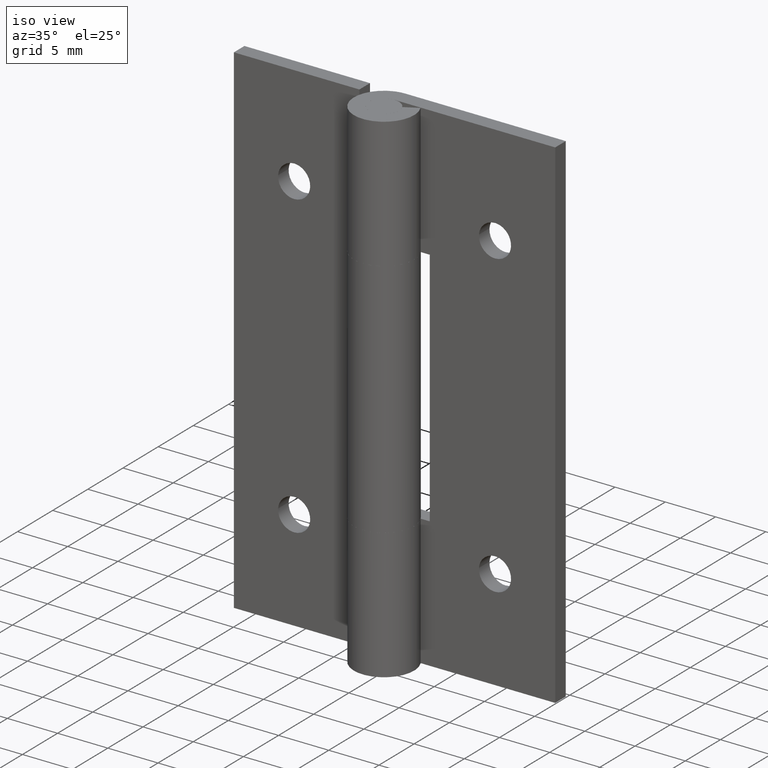
[diagram: clean part render]
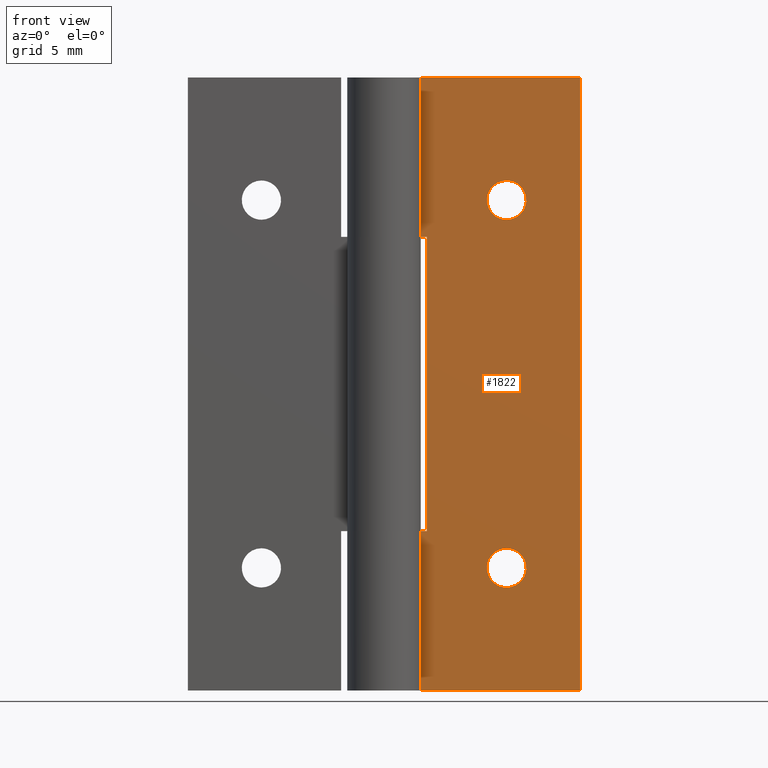
[diagram: tour spotlight — one face highlighted and labeled with its STEP entity id]
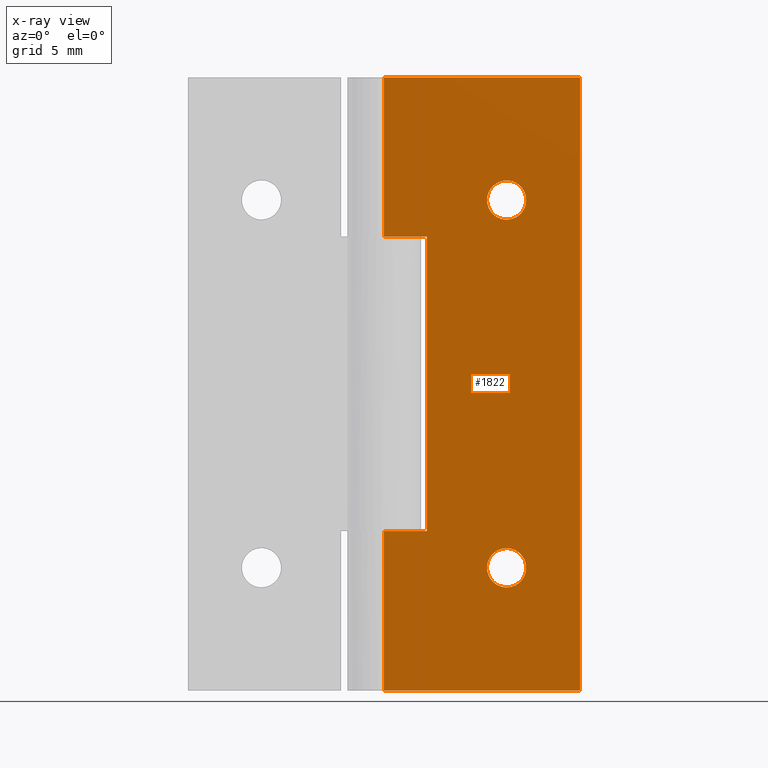
[diagram: x-ray of the same camera — body ghosted, this tour face saturated]
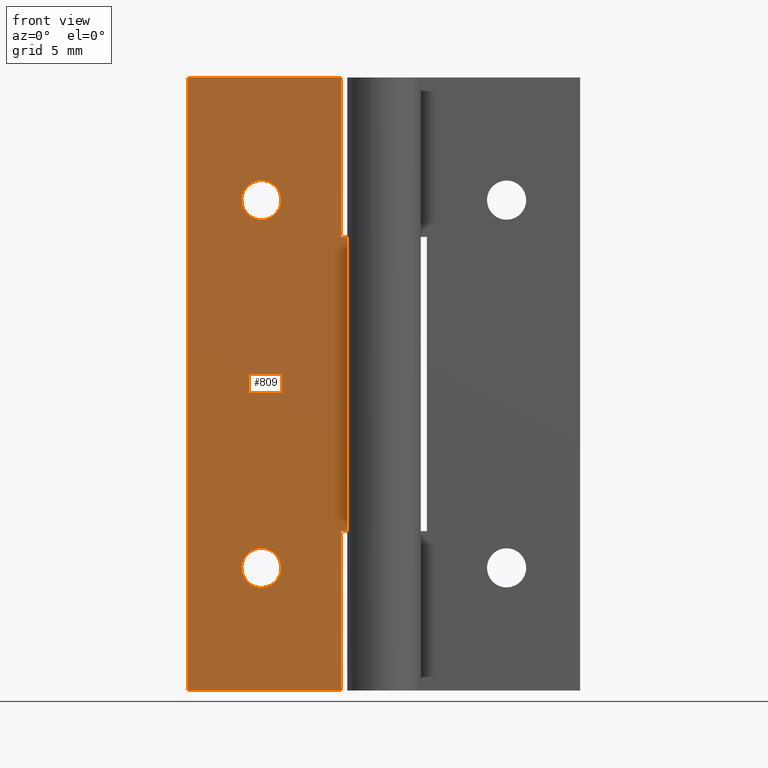
[diagram: tour spotlight — one face highlighted and labeled with its STEP entity id]
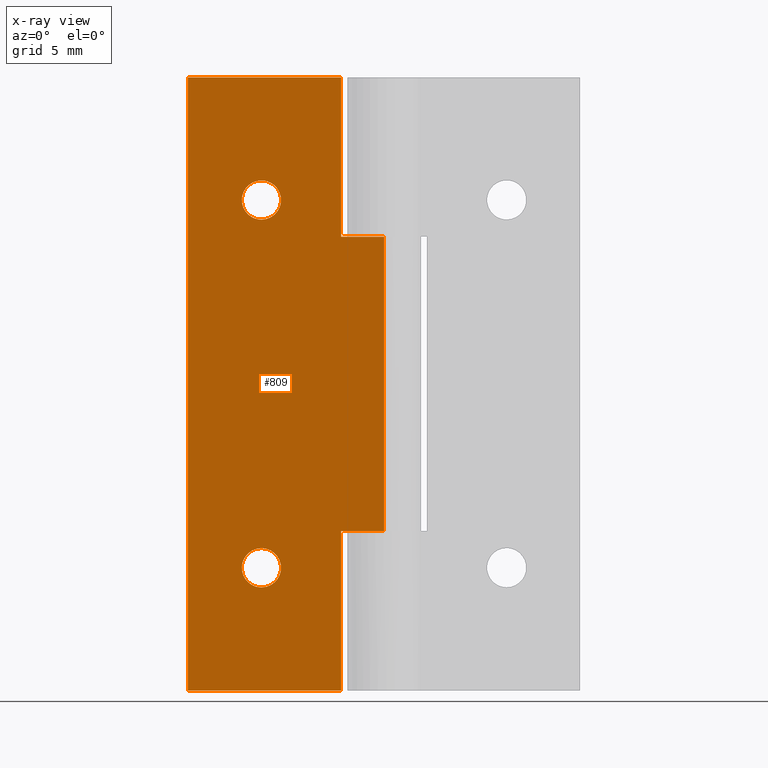
[diagram: x-ray of the same camera — body ghosted, this tour face saturated]
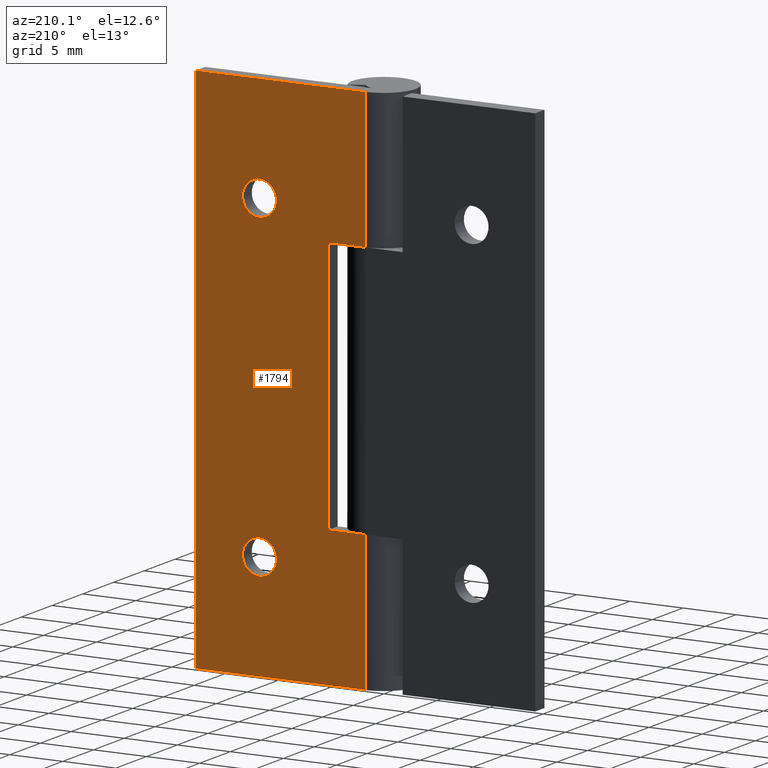
[diagram: tour spotlight — one face highlighted and labeled with its STEP entity id]
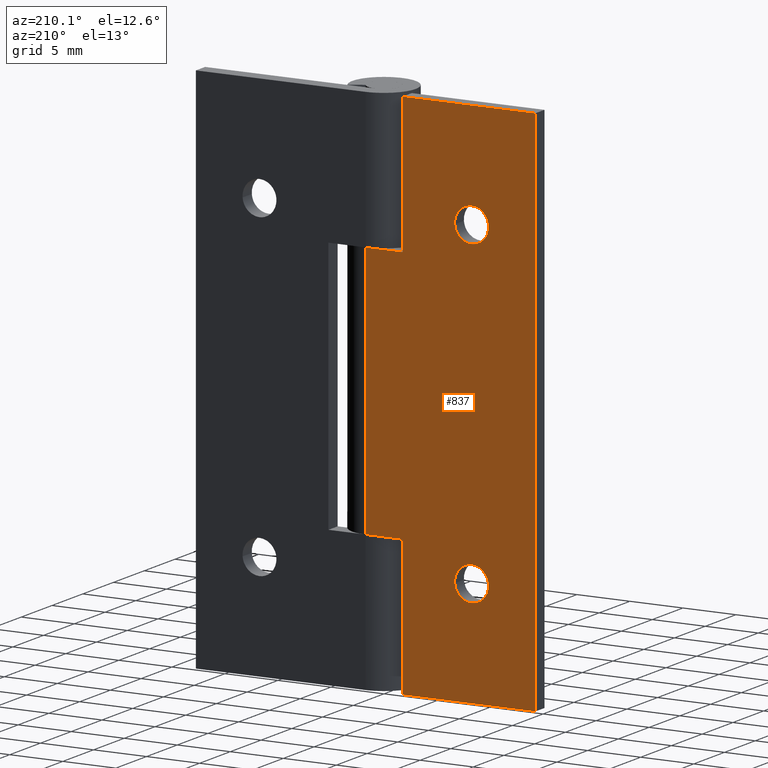
[diagram: tour spotlight — one face highlighted and labeled with its STEP entity id]
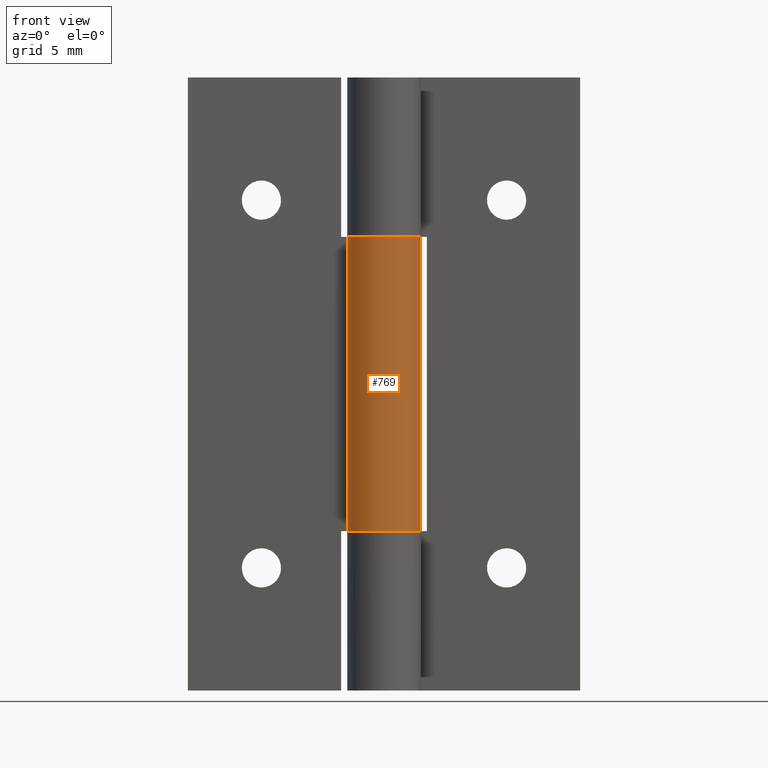
[diagram: tour spotlight — one face highlighted and labeled with its STEP entity id]
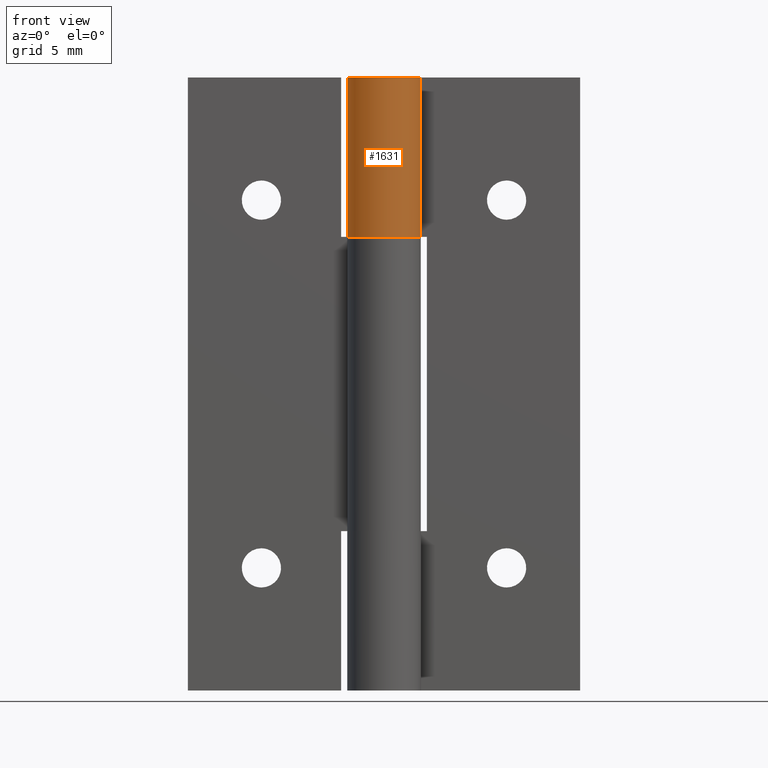
[diagram: tour spotlight — one face highlighted and labeled with its STEP entity id]
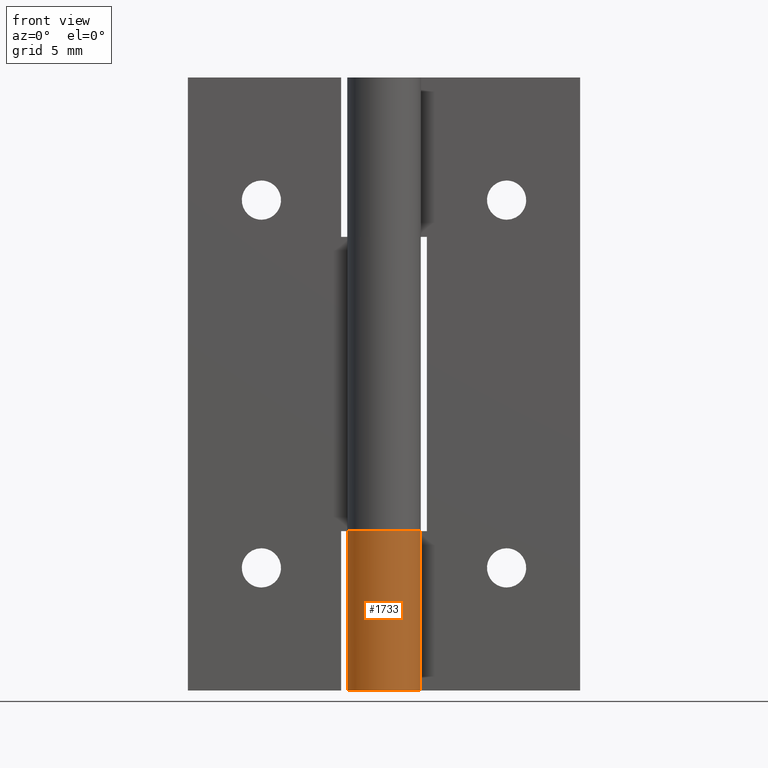
[diagram: tour spotlight — one face highlighted and labeled with its STEP entity id]
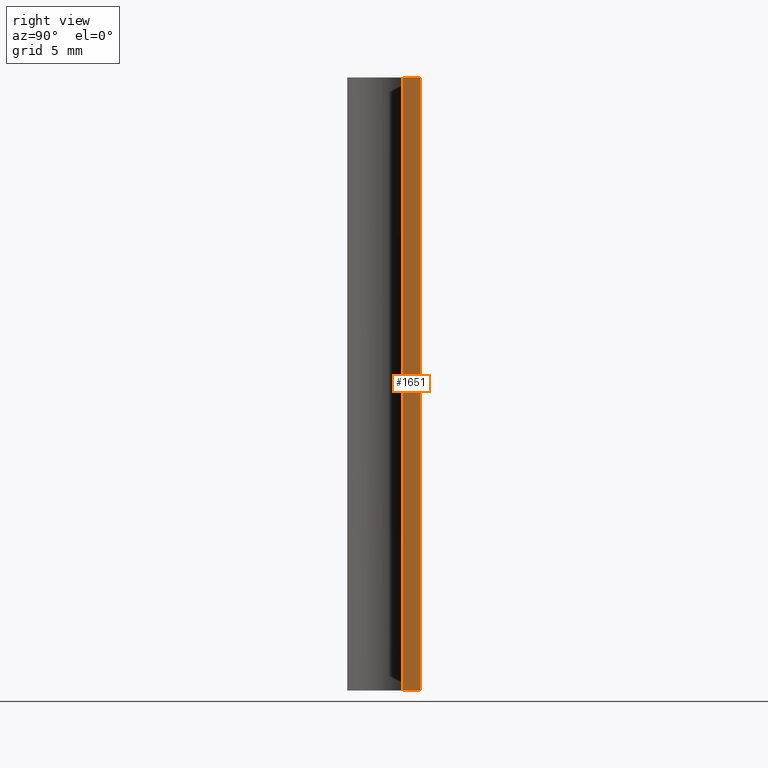
[diagram: tour spotlight — one face highlighted and labeled with its STEP entity id]
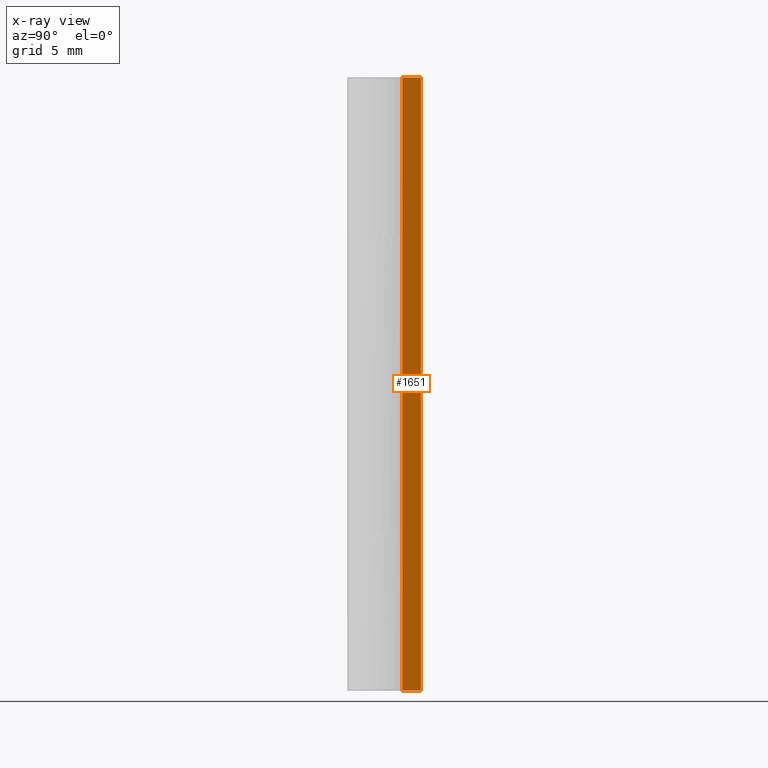
[diagram: x-ray of the same camera — body ghosted, this tour face saturated]
A machine part: a face-by-face anatomy tour. The part has 38 B-rep faces; the first image is the clean iso view, then the 8 largest visible faces are spotlighted one at a time (largest first), each with its STEP entity span.

Face 1 — front view, entity #1822. An x-ray twin of the same camera follows (body ghosted, this face saturated) — the face is partly hidden behind the body. In plain terms, the highlighted face is a freeform B-spline surface patch.
Definition (entity closure, byte-faithful):
#931=CARTESIAN_POINT('',(11.595067733957350,1.499999999999946,39.874465446636471));
#932=VERTEX_POINT('',#931);
#938=CARTESIAN_POINT('',(10.0,1.499999999999946,41.600000000000001));
#939=VERTEX_POINT('',#938);
#940=CARTESIAN_POINT('',(11.595067733957350,1.499999999999946,39.874465446636471));
#941=CARTESIAN_POINT('',(11.600000000000000,1.499999999999946,39.937135828587827));
#942=CARTESIAN_POINT('',(11.600000000000000,1.499999999999946,40.0));
#943=CARTESIAN_POINT('',(11.600000000000001,1.499999999999946,41.600000000000001));
#944=CARTESIAN_POINT('',(10.0,1.499999999999946,41.600000000000001));
#952=(BOUNDED_CURVE()B_SPLINE_CURVE(2,(#940,#941,#942,#943,#944),.UNSPECIFIED.,.F.,.U.)B_SPLINE_CURVE_WITH_KNOTS((3,2,3),(0.736331300589998,0.750000000000000,1.0),.UNSPECIFIED.)CURVE()GEOMETRIC_REPRESENTATION_ITEM()RATIONAL_B_SPLINE_CURVE((0.969723356082560,0.983986122531244,1.0,0.707106781186548,1.0))REPRESENTATION_ITEM(''));
#953=EDGE_CURVE('',#932,#939,#952,.T.);
#955=CARTESIAN_POINT('',(8.404932266042655,1.499999999999946,40.125534553363543));
#956=VERTEX_POINT('',#955);
#957=CARTESIAN_POINT('',(10.0,1.499999999999946,41.600000000000001));
#958=CARTESIAN_POINT('',(8.520975213717019,1.499999999999946,41.600000000000009));
#959=CARTESIAN_POINT('',(8.404932266042655,1.499999999999946,40.125534553363536));
#967=(BOUNDED_CURVE()B_SPLINE_CURVE(2,(#957,#958,#959),.UNSPECIFIED.,.F.,.U.)B_SPLINE_CURVE_WITH_KNOTS((3,3),(0.0,0.236331300589997),.UNSPECIFIED.)CURVE()GEOMETRIC_REPRESENTATION_ITEM()RATIONAL_B_SPLINE_CURVE((1.0,0.723120658655304,0.969723356082559))REPRESENTATION_ITEM(''));
#968=EDGE_CURVE('',#939,#956,#967,.T.);
#1014=CARTESIAN_POINT('',(10.0,1.499999999999946,38.400000000000013));
#1015=VERTEX_POINT('',#1014);
#1016=CARTESIAN_POINT('',(8.404932266042657,1.499999999999946,40.125534553363543));
#1017=CARTESIAN_POINT('',(8.400000000000000,1.499999999999946,40.062864171412166));
#1018=CARTESIAN_POINT('',(8.400000000000000,1.499999999999946,40.0));
#1019=CARTESIAN_POINT('',(8.400000000000000,1.499999999999946,38.400000000000006));
#1020=CARTESIAN_POINT('',(10.0,1.499999999999946,38.400000000000013));
#1028=(BOUNDED_CURVE()B_SPLINE_CURVE(2,(#1016,#1017,#1018,#1019,#1020),.UNSPECIFIED.,.F.,.U.)B_SPLINE_CURVE_WITH_KNOTS((3,2,3),(0.236331300589998,0.250000000000000,0.500000000000000),.UNSPECIFIED.)CURVE()GEOMETRIC_REPRESENTATION_ITEM()RATIONAL_B_SPLINE_CURVE((0.969723356082559,0.983986122531244,1.0,0.707106781186548,1.0))REPRESENTATION_ITEM(''));
#1029=EDGE_CURVE('',#956,#1015,#1028,.T.);
#1031=CARTESIAN_POINT('',(10.0,1.499999999999946,38.400000000000013));
#1032=CARTESIAN_POINT('',(11.479024786282988,1.499999999999947,38.400000000000006));
#1033=CARTESIAN_POINT('',(11.595067733957341,1.499999999999946,39.874465446636471));
#1041=(BOUNDED_CURVE()B_SPLINE_CURVE(2,(#1031,#1032,#1033),.UNSPECIFIED.,.F.,.U.)B_SPLINE_CURVE_WITH_KNOTS((3,3),(0.500000000000000,0.736331300589998),.UNSPECIFIED.)CURVE()GEOMETRIC_REPRESENTATION_ITEM()RATIONAL_B_SPLINE_CURVE((1.0,0.723120658655304,0.969723356082560))REPRESENTATION_ITEM(''));
#1042=EDGE_CURVE('',#1015,#932,#1041,.T.);
#1113=CARTESIAN_POINT('',(11.595067733957350,1.499999999999946,9.874465446636471));
#1114=VERTEX_POINT('',#1113);
#1120=CARTESIAN_POINT('',(10.0,1.499999999999946,11.600000000000000));
#1121=VERTEX_POINT('',#1120);
#1122=CARTESIAN_POINT('',(11.595067733957350,1.499999999999946,9.874465446636471));
#1123=CARTESIAN_POINT('',(11.600000000000000,1.499999999999946,9.937135828587829));
#1124=CARTESIAN_POINT('',(11.600000000000000,1.499999999999946,10.0));
#1125=CARTESIAN_POINT('',(11.600000000000001,1.499999999999946,11.600000000000001));
#1126=CARTESIAN_POINT('',(10.0,1.499999999999946,11.600000000000000));
#1134=(BOUNDED_CURVE()B_SPLINE_CURVE(2,(#1122,#1123,#1124,#1125,#1126),.UNSPECIFIED.,.F.,.U.)B_SPLINE_CURVE_WITH_KNOTS((3,2,3),(0.736331300589998,0.750000000000000,1.0),.UNSPECIFIED.)CURVE()GEOMETRIC_REPRESENTATION_ITEM()RATIONAL_B_SPLINE_CURVE((0.969723356082560,0.983986122531244,1.0,0.707106781186548,1.0))REPRESENTATION_ITEM(''));
#1135=EDGE_CURVE('',#1114,#1121,#1134,.T.);
#1137=CARTESIAN_POINT('',(8.404932266042657,1.499999999999946,10.125534553363529));
#1138=VERTEX_POINT('',#1137);
#1139=CARTESIAN_POINT('',(10.0,1.499999999999946,11.600000000000000));
#1140=CARTESIAN_POINT('',(8.520975213717012,1.499999999999946,11.600000000000001));
#1141=CARTESIAN_POINT('',(8.404932266042657,1.499999999999946,10.125534553363529));
#1149=(BOUNDED_CURVE()B_SPLINE_CURVE(2,(#1139,#1140,#1141),.UNSPECIFIED.,.F.,.U.)B_SPLINE_CURVE_WITH_KNOTS((3,3),(0.0,0.236331300589998),.UNSPECIFIED.)CURVE()GEOMETRIC_REPRESENTATION_ITEM()RATIONAL_B_SPLINE_CURVE((1.0,0.723120658655303,0.969723356082560))REPRESENTATION_ITEM(''));
#1150=EDGE_CURVE('',#1121,#1138,#1149,.T.);
#1196=CARTESIAN_POINT('',(10.0,1.499999999999946,8.400000000000000));
#1197=VERTEX_POINT('',#1196);
#1198=CARTESIAN_POINT('',(8.404932266042657,1.499999999999946,10.125534553363529));
#1199=CARTESIAN_POINT('',(8.400000000000000,1.499999999999946,10.062864171412171));
#1200=CARTESIAN_POINT('',(8.400000000000000,1.499999999999946,10.0));
#1201=CARTESIAN_POINT('',(8.400000000000000,1.499999999999946,8.400000000000000));
#1202=CARTESIAN_POINT('',(10.0,1.499999999999946,8.400000000000000));
#1210=(BOUNDED_CURVE()B_SPLINE_CURVE(2,(#1198,#1199,#1200,#1201,#1202),.UNSPECIFIED.,.F.,.U.)B_SPLINE_CURVE_WITH_KNOTS((3,2,3),(0.236331300589998,0.250000000000000,0.500000000000000),.UNSPECIFIED.)CURVE()GEOMETRIC_REPRESENTATION_ITEM()RATIONAL_B_SPLINE_CURVE((0.969723356082561,0.983986122531244,1.0,0.707106781186548,1.0))REPRESENTATION_ITEM(''));
#1211=EDGE_CURVE('',#1138,#1197,#1210,.T.);
#1213=CARTESIAN_POINT('',(10.0,1.499999999999946,8.400000000000000));
#1214=CARTESIAN_POINT('',(11.479024786282988,1.499999999999947,8.400000000000000));
#1215=CARTESIAN_POINT('',(11.595067733957341,1.499999999999946,9.874465446636471));
#1223=(BOUNDED_CURVE()B_SPLINE_CURVE(2,(#1213,#1214,#1215),.UNSPECIFIED.,.F.,.U.)B_SPLINE_CURVE_WITH_KNOTS((3,3),(0.500000000000000,0.736331300589998),.UNSPECIFIED.)CURVE()GEOMETRIC_REPRESENTATION_ITEM()RATIONAL_B_SPLINE_CURVE((1.0,0.723120658655304,0.969723356082560))REPRESENTATION_ITEM(''));
#1224=EDGE_CURVE('',#1197,#1114,#1223,.T.);
#1248=CARTESIAN_POINT('',(3.499999999999901,1.499999999999946,13.0));
#1249=VERTEX_POINT('',#1248);
#1292=CARTESIAN_POINT('',(0.0,1.500000000000000,13.0));
#1293=VERTEX_POINT('',#1292);
#1313=CARTESIAN_POINT('',(3.499999999999901,1.499999999999946,13.0));
#1314=CARTESIAN_POINT('',(0.0,1.500000000000000,13.0));
#1315=QUASI_UNIFORM_CURVE('',1,(#1313,#1314),.UNSPECIFIED.,.F.,.U.);
#1316=EDGE_CURVE('',#1249,#1293,#1315,.T.);
#1328=CARTESIAN_POINT('',(0.0,1.500000000000000,37.0));
#1329=VERTEX_POINT('',#1328);
#1384=CARTESIAN_POINT('',(3.499999999999901,1.499999999999946,37.0));
#1385=VERTEX_POINT('',#1384);
#1391=CARTESIAN_POINT('',(0.0,1.500000000000000,37.0));
#1392=CARTESIAN_POINT('',(3.499999999999901,1.499999999999946,37.0));
#1393=QUASI_UNIFORM_CURVE('',1,(#1391,#1392),.UNSPECIFIED.,.F.,.U.);
#1394=EDGE_CURVE('',#1329,#1385,#1393,.T.);
#1411=CARTESIAN_POINT('',(3.499999999999901,1.499999999999946,37.0));
#1412=CARTESIAN_POINT('',(3.499999999999901,1.499999999999946,13.0));
#1413=QUASI_UNIFORM_CURVE('',1,(#1411,#1412),.UNSPECIFIED.,.F.,.U.);
#1414=EDGE_CURVE('',#1385,#1249,#1413,.T.);
#1426=CARTESIAN_POINT('',(0.0,1.500000000000000,0.0));
#1427=VERTEX_POINT('',#1426);
#1482=CARTESIAN_POINT('',(16.0,1.500000000000000,0.0));
#1483=VERTEX_POINT('',#1482);
#1489=CARTESIAN_POINT('',(0.0,1.500000000000000,0.0));
#1490=CARTESIAN_POINT('',(16.0,1.500000000000000,0.0));
#1491=QUASI_UNIFORM_CURVE('',1,(#1489,#1490),.UNSPECIFIED.,.F.,.U.);
#1492=EDGE_CURVE('',#1427,#1483,#1491,.T.);
#1504=CARTESIAN_POINT('',(0.0,1.500000000000000,50.0));
#1505=VERTEX_POINT('',#1504);
#1525=CARTESIAN_POINT('',(16.0,1.500000000000000,50.0));
#1526=VERTEX_POINT('',#1525);
#1527=CARTESIAN_POINT('',(0.0,1.500000000000000,50.0));
#1528=CARTESIAN_POINT('',(16.0,1.500000000000000,50.0));
#1529=QUASI_UNIFORM_CURVE('',1,(#1527,#1528),.UNSPECIFIED.,.F.,.U.);
#1530=EDGE_CURVE('',#1505,#1526,#1529,.T.);
#1644=CARTESIAN_POINT('',(16.0,1.500000000000000,50.0));
#1645=CARTESIAN_POINT('',(16.0,1.500000000000000,0.0));
#1646=QUASI_UNIFORM_CURVE('',1,(#1644,#1645),.UNSPECIFIED.,.F.,.U.);
#1647=EDGE_CURVE('',#1526,#1483,#1646,.T.);
#1674=CARTESIAN_POINT('',(0.0,1.500000000000000,13.0));
#1675=CARTESIAN_POINT('',(0.0,1.500000000000000,0.0));
#1676=QUASI_UNIFORM_CURVE('',1,(#1674,#1675),.UNSPECIFIED.,.F.,.U.);
#1677=EDGE_CURVE('',#1293,#1427,#1676,.T.);
#1758=CARTESIAN_POINT('',(0.0,1.500000000000000,50.0));
#1759=CARTESIAN_POINT('',(0.0,1.500000000000000,37.0));
#1760=QUASI_UNIFORM_CURVE('',1,(#1758,#1759),.UNSPECIFIED.,.F.,.U.);
#1761=EDGE_CURVE('',#1505,#1329,#1760,.T.);
#1795=CARTESIAN_POINT('',(-0.799199968988895,1.500000000000000,-2.497499903090299));
#1796=CARTESIAN_POINT('',(-0.799199968988895,1.500000000000000,52.497501244194808));
#1797=CARTESIAN_POINT('',(16.799200398142339,1.500000000000000,-2.497499903090299));
#1798=CARTESIAN_POINT('',(16.799200398142339,1.500000000000000,52.497501244194808));
#1799=B_SPLINE_SURFACE_WITH_KNOTS('',1,1,((#1795,#1797),(#1796,#1798)),.UNSPECIFIED.,.F.,.F.,.U.,(2,2),(2,2),(0.0,54.995001147285109),(0.0,17.598400367131230),.UNSPECIFIED.);
#1800=ORIENTED_EDGE('',*,*,#1761,.T.);
#1801=ORIENTED_EDGE('',*,*,#1394,.T.);
#1802=ORIENTED_EDGE('',*,*,#1414,.T.);
#1803=ORIENTED_EDGE('',*,*,#1316,.T.);
#1804=ORIENTED_EDGE('',*,*,#1677,.T.);
#1805=ORIENTED_EDGE('',*,*,#1492,.T.);
#1806=ORIENTED_EDGE('',*,*,#1647,.F.);
#1807=ORIENTED_EDGE('',*,*,#1530,.F.);
#1808=EDGE_LOOP('',(#1800,#1801,#1802,#1803,#1804,#1805,#1806,#1807));
#1809=FACE_OUTER_BOUND('',#1808,.T.);
#1810=ORIENTED_EDGE('',*,*,#1224,.F.);
#1811=ORIENTED_EDGE('',*,*,#1211,.F.);
#1812=ORIENTED_EDGE('',*,*,#1150,.F.);
#1813=ORIENTED_EDGE('',*,*,#1135,.F.);
#1814=EDGE_LOOP('',(#1810,#1811,#1812,#1813));
#1815=FACE_BOUND('',#1814,.T.);
#1816=ORIENTED_EDGE('',*,*,#1042,.F.);
#1817=ORIENTED_EDGE('',*,*,#1029,.F.);
#1818=ORIENTED_EDGE('',*,*,#968,.F.);
#1819=ORIENTED_EDGE('',*,*,#953,.F.);
#1820=EDGE_LOOP('',(#1816,#1817,#1818,#1819));
#1821=FACE_BOUND('',#1820,.T.);
#1822=ADVANCED_FACE('',(#1809,#1815,#1821),#1799,.F.);

Face 2 — front view, entity #809. An x-ray twin of the same camera follows (body ghosted, this face saturated) — the face is partly hidden behind the body. In plain terms, the highlighted face is a freeform B-spline surface patch.
Definition (entity closure, byte-faithful):
#62=CARTESIAN_POINT('',(-10.0,1.499999999999946,41.600000000000001));
#63=VERTEX_POINT('',#62);
#64=CARTESIAN_POINT('',(-11.595067733957340,1.499999999999946,40.125534553363529));
#65=VERTEX_POINT('',#64);
#66=CARTESIAN_POINT('',(-10.0,1.499999999999946,41.600000000000001));
#67=CARTESIAN_POINT('',(-11.479024786282986,1.499999999999947,41.600000000000001));
#68=CARTESIAN_POINT('',(-11.595067733957345,1.499999999999945,40.125534553363529));
#76=(BOUNDED_CURVE()B_SPLINE_CURVE(2,(#66,#67,#68),.UNSPECIFIED.,.F.,.U.)B_SPLINE_CURVE_WITH_KNOTS((3,3),(0.0,0.236331300589998),.UNSPECIFIED.)CURVE()GEOMETRIC_REPRESENTATION_ITEM()RATIONAL_B_SPLINE_CURVE((1.0,0.723120658655304,0.969723356082560))REPRESENTATION_ITEM(''));
#77=EDGE_CURVE('',#63,#65,#76,.T.);
#118=CARTESIAN_POINT('',(-8.404932266042655,1.499999999999946,39.874465446636457));
#119=VERTEX_POINT('',#118);
#125=CARTESIAN_POINT('',(-8.404932266042655,1.499999999999946,39.874465446636464));
#126=CARTESIAN_POINT('',(-8.400000000000000,1.499999999999945,39.937135828587834));
#127=CARTESIAN_POINT('',(-8.400000000000000,1.499999999999946,40.0));
#128=CARTESIAN_POINT('',(-8.400000000000000,1.499999999999946,41.600000000000001));
#129=CARTESIAN_POINT('',(-10.0,1.499999999999946,41.600000000000001));
#137=(BOUNDED_CURVE()B_SPLINE_CURVE(2,(#125,#126,#127,#128,#129),.UNSPECIFIED.,.F.,.U.)B_SPLINE_CURVE_WITH_KNOTS((3,2,3),(0.736331300589998,0.750000000000000,1.0),.UNSPECIFIED.)CURVE()GEOMETRIC_REPRESENTATION_ITEM()RATIONAL_B_SPLINE_CURVE((0.969723356082560,0.983986122531244,1.0,0.707106781186548,1.0))REPRESENTATION_ITEM(''));
#138=EDGE_CURVE('',#119,#63,#137,.T.);
#161=CARTESIAN_POINT('',(-10.0,1.499999999999946,38.400000000000013));
#162=VERTEX_POINT('',#161);
#163=CARTESIAN_POINT('',(-11.595067733957345,1.499999999999945,40.125534553363529));
#164=CARTESIAN_POINT('',(-11.600000000000001,1.499999999999947,40.062864171412166));
#165=CARTESIAN_POINT('',(-11.600000000000000,1.499999999999946,40.0));
#166=CARTESIAN_POINT('',(-11.600000000000001,1.499999999999946,38.400000000000006));
#167=CARTESIAN_POINT('',(-10.0,1.499999999999946,38.400000000000013));
#175=(BOUNDED_CURVE()B_SPLINE_CURVE(2,(#163,#164,#165,#166,#167),.UNSPECIFIED.,.F.,.U.)B_SPLINE_CURVE_WITH_KNOTS((3,2,3),(0.236331300589998,0.250000000000000,0.500000000000000),.UNSPECIFIED.)CURVE()GEOMETRIC_REPRESENTATION_ITEM()RATIONAL_B_SPLINE_CURVE((0.969723356082560,0.983986122531244,1.0,0.707106781186548,1.0))REPRESENTATION_ITEM(''));
#176=EDGE_CURVE('',#65,#162,#175,.T.);
#178=CARTESIAN_POINT('',(-10.0,1.499999999999946,38.400000000000013));
#179=CARTESIAN_POINT('',(-8.520975213717014,1.499999999999947,38.400000000000006));
#180=CARTESIAN_POINT('',(-8.404932266042655,1.499999999999946,39.874465446636464));
#188=(BOUNDED_CURVE()B_SPLINE_CURVE(2,(#178,#179,#180),.UNSPECIFIED.,.F.,.U.)B_SPLINE_CURVE_WITH_KNOTS((3,3),(0.500000000000000,0.736331300589998),.UNSPECIFIED.)CURVE()GEOMETRIC_REPRESENTATION_ITEM()RATIONAL_B_SPLINE_CURVE((1.0,0.723120658655304,0.969723356082560))REPRESENTATION_ITEM(''));
#189=EDGE_CURVE('',#162,#119,#188,.T.);
#244=CARTESIAN_POINT('',(-10.0,1.499999999999946,11.600000000000000));
#245=VERTEX_POINT('',#244);
#246=CARTESIAN_POINT('',(-11.595067733957350,1.499999999999946,10.125534553363529));
#247=VERTEX_POINT('',#246);
#248=CARTESIAN_POINT('',(-10.0,1.499999999999946,11.600000000000000));
#249=CARTESIAN_POINT('',(-11.479024786282990,1.499999999999946,11.600000000000001));
#250=CARTESIAN_POINT('',(-11.595067733957352,1.499999999999946,10.125534553363529));
#258=(BOUNDED_CURVE()B_SPLINE_CURVE(2,(#248,#249,#250),.UNSPECIFIED.,.F.,.U.)B_SPLINE_CURVE_WITH_KNOTS((3,3),(0.0,0.236331300589998),.UNSPECIFIED.)CURVE()GEOMETRIC_REPRESENTATION_ITEM()RATIONAL_B_SPLINE_CURVE((1.0,0.723120658655304,0.969723356082560))REPRESENTATION_ITEM(''));
#259=EDGE_CURVE('',#245,#247,#258,.T.);
#300=CARTESIAN_POINT('',(-8.404932266042657,1.499999999999946,9.874465446636471));
#301=VERTEX_POINT('',#300);
#307=CARTESIAN_POINT('',(-8.404932266042657,1.499999999999946,9.874465446636471));
#308=CARTESIAN_POINT('',(-8.400000000000000,1.499999999999946,9.937135828587829));
#309=CARTESIAN_POINT('',(-8.400000000000000,1.499999999999946,10.0));
#310=CARTESIAN_POINT('',(-8.400000000000000,1.499999999999946,11.600000000000001));
#311=CARTESIAN_POINT('',(-10.0,1.499999999999946,11.600000000000000));
#319=(BOUNDED_CURVE()B_SPLINE_CURVE(2,(#307,#308,#309,#310,#311),.UNSPECIFIED.,.F.,.U.)B_SPLINE_CURVE_WITH_KNOTS((3,2,3),(0.736331300589998,0.750000000000000,1.0),.UNSPECIFIED.)CURVE()GEOMETRIC_REPRESENTATION_ITEM()RATIONAL_B_SPLINE_CURVE((0.969723356082561,0.983986122531244,1.0,0.707106781186548,1.0))REPRESENTATION_ITEM(''));
#320=EDGE_CURVE('',#301,#245,#319,.T.);
#343=CARTESIAN_POINT('',(-10.0,1.499999999999946,8.400000000000000));
#344=VERTEX_POINT('',#343);
#345=CARTESIAN_POINT('',(-11.595067733957352,1.499999999999946,10.125534553363529));
#346=CARTESIAN_POINT('',(-11.600000000000000,1.499999999999946,10.062864171412171));
#347=CARTESIAN_POINT('',(-11.600000000000000,1.499999999999946,10.0));
#348=CARTESIAN_POINT('',(-11.600000000000001,1.499999999999946,8.400000000000000));
#349=CARTESIAN_POINT('',(-10.0,1.499999999999946,8.400000000000000));
#357=(BOUNDED_CURVE()B_SPLINE_CURVE(2,(#345,#346,#347,#348,#349),.UNSPECIFIED.,.F.,.U.)B_SPLINE_CURVE_WITH_KNOTS((3,2,3),(0.236331300589998,0.250000000000000,0.500000000000000),.UNSPECIFIED.)CURVE()GEOMETRIC_REPRESENTATION_ITEM()RATIONAL_B_SPLINE_CURVE((0.969723356082560,0.983986122531244,1.0,0.707106781186548,1.0))REPRESENTATION_ITEM(''));
#358=EDGE_CURVE('',#247,#344,#357,.T.);
#360=CARTESIAN_POINT('',(-10.0,1.499999999999946,8.400000000000000));
#361=CARTESIAN_POINT('',(-8.520975213717014,1.499999999999947,8.400000000000000));
#362=CARTESIAN_POINT('',(-8.404932266042657,1.499999999999946,9.874465446636471));
#370=(BOUNDED_CURVE()B_SPLINE_CURVE(2,(#360,#361,#362),.UNSPECIFIED.,.F.,.U.)B_SPLINE_CURVE_WITH_KNOTS((3,3),(0.500000000000000,0.736331300589998),.UNSPECIFIED.)CURVE()GEOMETRIC_REPRESENTATION_ITEM()RATIONAL_B_SPLINE_CURVE((1.0,0.723120658655304,0.969723356082560))REPRESENTATION_ITEM(''));
#371=EDGE_CURVE('',#344,#301,#370,.T.);
#413=CARTESIAN_POINT('',(-3.500000000000100,1.499999999999946,13.0));
#414=VERTEX_POINT('',#413);
#415=CARTESIAN_POINT('',(-3.500000000000100,1.500000000000000,0.0));
#416=VERTEX_POINT('',#415);
#417=CARTESIAN_POINT('',(-3.500000000000100,1.499999999999946,13.0));
#418=CARTESIAN_POINT('',(-3.500000000000100,1.500000000000000,0.0));
#419=QUASI_UNIFORM_CURVE('',1,(#417,#418),.UNSPECIFIED.,.F.,.U.);
#420=EDGE_CURVE('',#414,#416,#419,.T.);
#479=CARTESIAN_POINT('',(0.0,1.500000000000000,13.0));
#480=VERTEX_POINT('',#479);
#500=CARTESIAN_POINT('',(0.0,1.500000000000000,13.0));
#501=CARTESIAN_POINT('',(-3.500000000000100,1.499999999999946,13.0));
#502=QUASI_UNIFORM_CURVE('',1,(#500,#501),.UNSPECIFIED.,.F.,.U.);
#503=EDGE_CURVE('',#480,#414,#502,.T.);
#519=CARTESIAN_POINT('',(-3.500000000000100,1.499999999999946,50.0));
#520=VERTEX_POINT('',#519);
#521=CARTESIAN_POINT('',(-3.500000000000100,1.499999999999946,37.0));
#522=VERTEX_POINT('',#521);
#523=CARTESIAN_POINT('',(-3.500000000000100,1.499999999999946,50.0));
#524=CARTESIAN_POINT('',(-3.500000000000100,1.499999999999946,37.0));
#525=QUASI_UNIFORM_CURVE('',1,(#523,#524),.UNSPECIFIED.,.F.,.U.);
#526=EDGE_CURVE('',#520,#522,#525,.T.);
#563=CARTESIAN_POINT('',(0.0,1.500000000000000,37.0));
#564=VERTEX_POINT('',#563);
#565=CARTESIAN_POINT('',(-3.500000000000100,1.499999999999946,37.0));
#566=CARTESIAN_POINT('',(0.0,1.500000000000000,37.0));
#567=QUASI_UNIFORM_CURVE('',1,(#565,#566),.UNSPECIFIED.,.F.,.U.);
#568=EDGE_CURVE('',#522,#564,#567,.T.);
#625=CARTESIAN_POINT('',(-16.0,1.500000000000000,50.0));
#626=VERTEX_POINT('',#625);
#627=CARTESIAN_POINT('',(-16.0,1.500000000000000,50.0));
#628=CARTESIAN_POINT('',(-3.500000000000100,1.499999999999946,50.0));
#629=QUASI_UNIFORM_CURVE('',1,(#627,#628),.UNSPECIFIED.,.F.,.U.);
#630=EDGE_CURVE('',#626,#520,#629,.T.);
#654=CARTESIAN_POINT('',(-16.0,1.500000000000000,0.0));
#655=VERTEX_POINT('',#654);
#656=CARTESIAN_POINT('',(-16.0,1.500000000000000,0.0));
#657=CARTESIAN_POINT('',(-3.500000000000100,1.500000000000000,0.0));
#658=QUASI_UNIFORM_CURVE('',1,(#656,#657),.UNSPECIFIED.,.F.,.U.);
#659=EDGE_CURVE('',#655,#416,#658,.T.);
#705=CARTESIAN_POINT('',(0.0,1.500000000000000,13.0));
#706=CARTESIAN_POINT('',(0.0,1.500000000000000,37.0));
#707=QUASI_UNIFORM_CURVE('',1,(#705,#706),.UNSPECIFIED.,.F.,.U.);
#708=EDGE_CURVE('',#480,#564,#707,.T.);
#725=CARTESIAN_POINT('',(-16.0,1.500000000000000,0.0));
#726=CARTESIAN_POINT('',(-16.0,1.500000000000000,50.0));
#727=QUASI_UNIFORM_CURVE('',1,(#725,#726),.UNSPECIFIED.,.F.,.U.);
#728=EDGE_CURVE('',#655,#626,#727,.T.);
#782=CARTESIAN_POINT('',(-16.799199968988891,1.500000000000000,52.497499903090286));
#783=CARTESIAN_POINT('',(-16.799199968988891,1.500000000000000,-2.497501244194806));
#784=CARTESIAN_POINT('',(0.799200398142338,1.500000000000000,52.497499903090301));
#785=CARTESIAN_POINT('',(0.799200398142338,1.500000000000000,-2.497501244194806));
#786=B_SPLINE_SURFACE_WITH_KNOTS('',1,1,((#782,#784),(#783,#785)),.UNSPECIFIED.,.F.,.F.,.U.,(2,2),(2,2),(0.0,54.995001147285109),(0.0,17.598400367131230),.UNSPECIFIED.);
#787=ORIENTED_EDGE('',*,*,#503,.F.);
#788=ORIENTED_EDGE('',*,*,#708,.T.);
#789=ORIENTED_EDGE('',*,*,#568,.F.);
#790=ORIENTED_EDGE('',*,*,#526,.F.);
#791=ORIENTED_EDGE('',*,*,#630,.F.);
#792=ORIENTED_EDGE('',*,*,#728,.F.);
#793=ORIENTED_EDGE('',*,*,#659,.T.);
#794=ORIENTED_EDGE('',*,*,#420,.F.);
#795=EDGE_LOOP('',(#787,#788,#789,#790,#791,#792,#793,#794));
#796=FACE_OUTER_BOUND('',#795,.T.);
#797=ORIENTED_EDGE('',*,*,#371,.F.);
#798=ORIENTED_EDGE('',*,*,#358,.F.);
#799=ORIENTED_EDGE('',*,*,#259,.F.);
#800=ORIENTED_EDGE('',*,*,#320,.F.);
#801=EDGE_LOOP('',(#797,#798,#799,#800));
#802=FACE_BOUND('',#801,.T.);
#803=ORIENTED_EDGE('',*,*,#189,.F.);
#804=ORIENTED_EDGE('',*,*,#176,.F.);
#805=ORIENTED_EDGE('',*,*,#77,.F.);
#806=ORIENTED_EDGE('',*,*,#138,.F.);
#807=EDGE_LOOP('',(#803,#804,#805,#806));
#808=FACE_BOUND('',#807,.T.);
#809=ADVANCED_FACE('',(#796,#802,#808),#786,.T.);

Face 3 — auxiliary view, entity #1794. In plain terms, the highlighted face is a freeform B-spline surface patch.
Definition (entity closure, byte-faithful):
#897=CARTESIAN_POINT('',(10.0,3.0,41.600000000000001));
#898=VERTEX_POINT('',#897);
#899=CARTESIAN_POINT('',(8.404932266042657,3.0,40.125534553363543));
#900=VERTEX_POINT('',#899);
#901=CARTESIAN_POINT('',(10.0,3.0,41.600000000000001));
#902=CARTESIAN_POINT('',(8.520975213717014,3.000000000000001,41.600000000000001));
#903=CARTESIAN_POINT('',(8.404932266042657,3.0,40.125534553363529));
#911=(BOUNDED_CURVE()B_SPLINE_CURVE(2,(#901,#902,#903),.UNSPECIFIED.,.F.,.U.)B_SPLINE_CURVE_WITH_KNOTS((3,3),(0.0,0.236331300589998),.UNSPECIFIED.)CURVE()GEOMETRIC_REPRESENTATION_ITEM()RATIONAL_B_SPLINE_CURVE((1.0,0.723120658655304,0.969723356082560))REPRESENTATION_ITEM(''));
#912=EDGE_CURVE('',#898,#900,#911,.T.);
#914=CARTESIAN_POINT('',(11.595067733957350,3.0,39.874465446636457));
#915=VERTEX_POINT('',#914);
#916=CARTESIAN_POINT('',(11.595067733957338,3.000000000000000,39.874465446636464));
#917=CARTESIAN_POINT('',(11.600000000000005,3.0,39.937135828587827));
#918=CARTESIAN_POINT('',(11.600000000000000,3.0,40.0));
#919=CARTESIAN_POINT('',(11.600000000000001,3.0,41.600000000000001));
#920=CARTESIAN_POINT('',(10.0,3.0,41.600000000000001));
#928=(BOUNDED_CURVE()B_SPLINE_CURVE(2,(#916,#917,#918,#919,#920),.UNSPECIFIED.,.F.,.U.)B_SPLINE_CURVE_WITH_KNOTS((3,2,3),(0.736331300589998,0.750000000000000,1.0),.UNSPECIFIED.)CURVE()GEOMETRIC_REPRESENTATION_ITEM()RATIONAL_B_SPLINE_CURVE((0.969723356082560,0.983986122531244,1.0,0.707106781186548,1.0))REPRESENTATION_ITEM(''));
#929=EDGE_CURVE('',#915,#898,#928,.T.);
#996=CARTESIAN_POINT('',(10.0,3.0,38.400000000000013));
#997=VERTEX_POINT('',#996);
#998=CARTESIAN_POINT('',(8.404932266042657,3.000000000000000,40.125534553363536));
#999=CARTESIAN_POINT('',(8.400000000000000,3.000000000000000,40.062864171412180));
#1000=CARTESIAN_POINT('',(8.400000000000000,3.0,40.0));
#1001=CARTESIAN_POINT('',(8.400000000000000,3.0,38.400000000000006));
#1002=CARTESIAN_POINT('',(10.0,3.0,38.400000000000013));
#1010=(BOUNDED_CURVE()B_SPLINE_CURVE(2,(#998,#999,#1000,#1001,#1002),.UNSPECIFIED.,.F.,.U.)B_SPLINE_CURVE_WITH_KNOTS((3,2,3),(0.236331300589998,0.250000000000000,0.500000000000000),.UNSPECIFIED.)CURVE()GEOMETRIC_REPRESENTATION_ITEM()RATIONAL_B_SPLINE_CURVE((0.969723356082560,0.983986122531244,1.0,0.707106781186548,1.0))REPRESENTATION_ITEM(''));
#1011=EDGE_CURVE('',#900,#997,#1010,.T.);
#1045=CARTESIAN_POINT('',(10.0,3.0,38.400000000000013));
#1046=CARTESIAN_POINT('',(11.479024786282988,3.000000000000000,38.400000000000006));
#1047=CARTESIAN_POINT('',(11.595067733957341,3.000000000000000,39.874465446636464));
#1055=(BOUNDED_CURVE()B_SPLINE_CURVE(2,(#1045,#1046,#1047),.UNSPECIFIED.,.F.,.U.)B_SPLINE_CURVE_WITH_KNOTS((3,3),(0.500000000000000,0.736331300589998),.UNSPECIFIED.)CURVE()GEOMETRIC_REPRESENTATION_ITEM()RATIONAL_B_SPLINE_CURVE((1.0,0.723120658655304,0.969723356082560))REPRESENTATION_ITEM(''));
#1056=EDGE_CURVE('',#997,#915,#1055,.T.);
#1079=CARTESIAN_POINT('',(10.0,3.0,11.600000000000000));
#1080=VERTEX_POINT('',#1079);
#1081=CARTESIAN_POINT('',(8.404932266042657,3.0,10.125534553363529));
#1082=VERTEX_POINT('',#1081);
#1083=CARTESIAN_POINT('',(10.0,3.0,11.600000000000000));
#1084=CARTESIAN_POINT('',(8.520975213717014,3.000000000000001,11.600000000000001));
#1085=CARTESIAN_POINT('',(8.404932266042657,3.0,10.125534553363529));
#1093=(BOUNDED_CURVE()B_SPLINE_CURVE(2,(#1083,#1084,#1085),.UNSPECIFIED.,.F.,.U.)B_SPLINE_CURVE_WITH_KNOTS((3,3),(0.0,0.236331300589998),.UNSPECIFIED.)CURVE()GEOMETRIC_REPRESENTATION_ITEM()RATIONAL_B_SPLINE_CURVE((1.0,0.723120658655304,0.969723356082560))REPRESENTATION_ITEM(''));
#1094=EDGE_CURVE('',#1080,#1082,#1093,.T.);
#1096=CARTESIAN_POINT('',(11.595067733957350,3.0,9.874465446636471));
#1097=VERTEX_POINT('',#1096);
#1098=CARTESIAN_POINT('',(11.595067733957350,3.000000000000001,9.874465446636471));
#1099=CARTESIAN_POINT('',(11.600000000000000,3.0,9.937135828587829));
#1100=CARTESIAN_POINT('',(11.600000000000000,3.0,10.0));
#1101=CARTESIAN_POINT('',(11.600000000000001,3.0,11.600000000000001));
#1102=CARTESIAN_POINT('',(10.0,3.0,11.600000000000000));
#1110=(BOUNDED_CURVE()B_SPLINE_CURVE(2,(#1098,#1099,#1100,#1101,#1102),.UNSPECIFIED.,.F.,.U.)B_SPLINE_CURVE_WITH_KNOTS((3,2,3),(0.736331300589998,0.750000000000000,1.0),.UNSPECIFIED.)CURVE()GEOMETRIC_REPRESENTATION_ITEM()RATIONAL_B_SPLINE_CURVE((0.969723356082560,0.983986122531244,1.0,0.707106781186548,1.0))REPRESENTATION_ITEM(''));
#1111=EDGE_CURVE('',#1097,#1080,#1110,.T.);
#1178=CARTESIAN_POINT('',(10.0,3.0,8.400000000000000));
#1179=VERTEX_POINT('',#1178);
#1180=CARTESIAN_POINT('',(8.404932266042657,3.0,10.125534553363529));
#1181=CARTESIAN_POINT('',(8.399999999999999,3.0,10.062864171412171));
#1182=CARTESIAN_POINT('',(8.400000000000000,3.0,10.0));
#1183=CARTESIAN_POINT('',(8.400000000000000,3.0,8.400000000000000));
#1184=CARTESIAN_POINT('',(10.0,3.0,8.400000000000000));
#1192=(BOUNDED_CURVE()B_SPLINE_CURVE(2,(#1180,#1181,#1182,#1183,#1184),.UNSPECIFIED.,.F.,.U.)B_SPLINE_CURVE_WITH_KNOTS((3,2,3),(0.236331300589998,0.250000000000000,0.500000000000000),.UNSPECIFIED.)CURVE()GEOMETRIC_REPRESENTATION_ITEM()RATIONAL_B_SPLINE_CURVE((0.969723356082560,0.983986122531244,1.0,0.707106781186548,1.0))REPRESENTATION_ITEM(''));
#1193=EDGE_CURVE('',#1082,#1179,#1192,.T.);
#1227=CARTESIAN_POINT('',(10.0,3.0,8.400000000000000));
#1228=CARTESIAN_POINT('',(11.479024786282988,3.000000000000000,8.400000000000000));
#1229=CARTESIAN_POINT('',(11.595067733957341,3.000000000000000,9.874465446636471));
#1237=(BOUNDED_CURVE()B_SPLINE_CURVE(2,(#1227,#1228,#1229),.UNSPECIFIED.,.F.,.U.)B_SPLINE_CURVE_WITH_KNOTS((3,3),(0.500000000000000,0.736331300589998),.UNSPECIFIED.)CURVE()GEOMETRIC_REPRESENTATION_ITEM()RATIONAL_B_SPLINE_CURVE((1.0,0.723120658655304,0.969723356082560))REPRESENTATION_ITEM(''));
#1238=EDGE_CURVE('',#1179,#1097,#1237,.T.);
#1250=CARTESIAN_POINT('',(3.499999999999901,3.0,13.0));
#1251=VERTEX_POINT('',#1250);
#1257=CARTESIAN_POINT('',(0.0,3.0,13.0));
#1258=VERTEX_POINT('',#1257);
#1259=CARTESIAN_POINT('',(3.499999999999901,3.0,13.0));
#1260=CARTESIAN_POINT('',(0.0,3.0,13.0));
#1261=QUASI_UNIFORM_CURVE('',1,(#1259,#1260),.UNSPECIFIED.,.F.,.U.);
#1262=EDGE_CURVE('',#1251,#1258,#1261,.T.);
#1356=CARTESIAN_POINT('',(0.0,3.0,37.0));
#1357=VERTEX_POINT('',#1356);
#1377=CARTESIAN_POINT('',(3.499999999999901,3.0,37.0));
#1378=VERTEX_POINT('',#1377);
#1379=CARTESIAN_POINT('',(0.0,3.0,37.0));
#1380=CARTESIAN_POINT('',(3.499999999999901,3.0,37.0));
#1381=QUASI_UNIFORM_CURVE('',1,(#1379,#1380),.UNSPECIFIED.,.F.,.U.);
#1382=EDGE_CURVE('',#1357,#1378,#1381,.T.);
#1405=CARTESIAN_POINT('',(3.499999999999901,3.0,37.0));
#1406=CARTESIAN_POINT('',(3.499999999999901,3.0,13.0));
#1407=QUASI_UNIFORM_CURVE('',1,(#1405,#1406),.UNSPECIFIED.,.F.,.U.);
#1408=EDGE_CURVE('',#1378,#1251,#1407,.T.);
#1454=CARTESIAN_POINT('',(0.0,3.0,0.0));
#1455=VERTEX_POINT('',#1454);
#1475=CARTESIAN_POINT('',(16.0,3.0,0.0));
#1476=VERTEX_POINT('',#1475);
#1477=CARTESIAN_POINT('',(16.0,3.0,0.0));
#1478=CARTESIAN_POINT('',(0.0,3.0,0.0));
#1479=QUASI_UNIFORM_CURVE('',1,(#1477,#1478),.UNSPECIFIED.,.F.,.U.);
#1480=EDGE_CURVE('',#1476,#1455,#1479,.T.);
#1532=CARTESIAN_POINT('',(16.0,3.0,50.0));
#1533=VERTEX_POINT('',#1532);
#1539=CARTESIAN_POINT('',(0.0,3.0,50.0));
#1540=VERTEX_POINT('',#1539);
#1541=CARTESIAN_POINT('',(16.0,3.0,50.0));
#1542=CARTESIAN_POINT('',(0.0,3.0,50.0));
#1543=QUASI_UNIFORM_CURVE('',1,(#1541,#1542),.UNSPECIFIED.,.F.,.U.);
#1544=EDGE_CURVE('',#1533,#1540,#1543,.T.);
#1624=CARTESIAN_POINT('',(0.0,3.0,50.0));
#1625=CARTESIAN_POINT('',(0.0,3.0,37.0));
#1626=QUASI_UNIFORM_CURVE('',1,(#1624,#1625),.UNSPECIFIED.,.F.,.U.);
#1627=EDGE_CURVE('',#1540,#1357,#1626,.T.);
#1638=CARTESIAN_POINT('',(16.0,3.0,50.0));
#1639=CARTESIAN_POINT('',(16.0,3.0,0.0));
#1640=QUASI_UNIFORM_CURVE('',1,(#1638,#1639),.UNSPECIFIED.,.F.,.U.);
#1641=EDGE_CURVE('',#1533,#1476,#1640,.T.);
#1725=CARTESIAN_POINT('',(0.0,3.0,13.0));
#1726=CARTESIAN_POINT('',(0.0,3.0,0.0));
#1727=QUASI_UNIFORM_CURVE('',1,(#1725,#1726),.UNSPECIFIED.,.F.,.U.);
#1728=EDGE_CURVE('',#1258,#1455,#1727,.T.);
#1767=CARTESIAN_POINT('',(-0.799199968988895,3.0,52.497499903090286));
#1768=CARTESIAN_POINT('',(-0.799199968988895,3.0,-2.497501244194806));
#1769=CARTESIAN_POINT('',(16.799200398142339,3.0,52.497499903090301));
#1770=CARTESIAN_POINT('',(16.799200398142339,3.0,-2.497501244194806));
#1771=B_SPLINE_SURFACE_WITH_KNOTS('',1,1,((#1767,#1769),(#1768,#1770)),.UNSPECIFIED.,.F.,.F.,.U.,(2,2),(2,2),(0.0,54.995001147285109),(0.0,17.598400367131230),.UNSPECIFIED.);
#1772=ORIENTED_EDGE('',*,*,#1408,.F.);
#1773=ORIENTED_EDGE('',*,*,#1382,.F.);
#1774=ORIENTED_EDGE('',*,*,#1627,.F.);
#1775=ORIENTED_EDGE('',*,*,#1544,.F.);
#1776=ORIENTED_EDGE('',*,*,#1641,.T.);
#1777=ORIENTED_EDGE('',*,*,#1480,.T.);
#1778=ORIENTED_EDGE('',*,*,#1728,.F.);
#1779=ORIENTED_EDGE('',*,*,#1262,.F.);
#1780=EDGE_LOOP('',(#1772,#1773,#1774,#1775,#1776,#1777,#1778,#1779));
#1781=FACE_OUTER_BOUND('',#1780,.T.);
#1782=ORIENTED_EDGE('',*,*,#1238,.T.);
#1783=ORIENTED_EDGE('',*,*,#1111,.T.);
#1784=ORIENTED_EDGE('',*,*,#1094,.T.);
#1785=ORIENTED_EDGE('',*,*,#1193,.T.);
#1786=EDGE_LOOP('',(#1782,#1783,#1784,#1785));
#1787=FACE_BOUND('',#1786,.T.);
#1788=ORIENTED_EDGE('',*,*,#1056,.T.);
#1789=ORIENTED_EDGE('',*,*,#929,.T.);
#1790=ORIENTED_EDGE('',*,*,#912,.T.);
#1791=ORIENTED_EDGE('',*,*,#1011,.T.);
#1792=EDGE_LOOP('',(#1788,#1789,#1790,#1791));
#1793=FACE_BOUND('',#1792,.T.);
#1794=ADVANCED_FACE('',(#1781,#1787,#1793),#1771,.F.);

Face 4 — auxiliary view, entity #837. In plain terms, the highlighted face is a freeform B-spline surface patch.
Definition (entity closure, byte-faithful):
#79=CARTESIAN_POINT('',(-11.595067733957350,3.0,40.125534553363543));
#80=VERTEX_POINT('',#79);
#86=CARTESIAN_POINT('',(-10.0,3.0,41.600000000000001));
#87=VERTEX_POINT('',#86);
#88=CARTESIAN_POINT('',(-10.0,3.0,41.600000000000001));
#89=CARTESIAN_POINT('',(-11.479024786282984,2.999999999999999,41.600000000000009));
#90=CARTESIAN_POINT('',(-11.595067733957343,3.000000000000000,40.125534553363536));
#98=(BOUNDED_CURVE()B_SPLINE_CURVE(2,(#88,#89,#90),.UNSPECIFIED.,.F.,.U.)B_SPLINE_CURVE_WITH_KNOTS((3,3),(0.0,0.236331300589997),.UNSPECIFIED.)CURVE()GEOMETRIC_REPRESENTATION_ITEM()RATIONAL_B_SPLINE_CURVE((1.0,0.723120658655304,0.969723356082559))REPRESENTATION_ITEM(''));
#99=EDGE_CURVE('',#87,#80,#98,.T.);
#101=CARTESIAN_POINT('',(-8.404932266042657,3.0,39.874465446636457));
#102=VERTEX_POINT('',#101);
#103=CARTESIAN_POINT('',(-8.404932266042657,3.000000000000000,39.874465446636457));
#104=CARTESIAN_POINT('',(-8.400000000000000,3.000000000000000,39.937135828587827));
#105=CARTESIAN_POINT('',(-8.400000000000000,3.0,40.0));
#106=CARTESIAN_POINT('',(-8.400000000000000,3.0,41.600000000000001));
#107=CARTESIAN_POINT('',(-10.0,3.0,41.600000000000001));
#115=(BOUNDED_CURVE()B_SPLINE_CURVE(2,(#103,#104,#105,#106,#107),.UNSPECIFIED.,.F.,.U.)B_SPLINE_CURVE_WITH_KNOTS((3,2,3),(0.736331300589998,0.750000000000000,1.0),.UNSPECIFIED.)CURVE()GEOMETRIC_REPRESENTATION_ITEM()RATIONAL_B_SPLINE_CURVE((0.969723356082561,0.983986122531244,1.0,0.707106781186548,1.0))REPRESENTATION_ITEM(''));
#116=EDGE_CURVE('',#102,#87,#115,.T.);
#192=CARTESIAN_POINT('',(-10.0,3.0,38.400000000000013));
#193=VERTEX_POINT('',#192);
#194=CARTESIAN_POINT('',(-10.0,3.0,38.400000000000013));
#195=CARTESIAN_POINT('',(-8.520975213717014,3.000000000000000,38.400000000000006));
#196=CARTESIAN_POINT('',(-8.404932266042657,3.000000000000000,39.874465446636464));
#204=(BOUNDED_CURVE()B_SPLINE_CURVE(2,(#194,#195,#196),.UNSPECIFIED.,.F.,.U.)B_SPLINE_CURVE_WITH_KNOTS((3,3),(0.500000000000000,0.736331300589998),.UNSPECIFIED.)CURVE()GEOMETRIC_REPRESENTATION_ITEM()RATIONAL_B_SPLINE_CURVE((1.0,0.723120658655304,0.969723356082560))REPRESENTATION_ITEM(''));
#205=EDGE_CURVE('',#193,#102,#204,.T.);
#207=CARTESIAN_POINT('',(-11.595067733957343,3.000000000000000,40.125534553363543));
#208=CARTESIAN_POINT('',(-11.600000000000007,3.000000000000000,40.062864171412173));
#209=CARTESIAN_POINT('',(-11.600000000000000,3.0,40.0));
#210=CARTESIAN_POINT('',(-11.600000000000001,3.0,38.400000000000006));
#211=CARTESIAN_POINT('',(-10.0,3.0,38.400000000000013));
#219=(BOUNDED_CURVE()B_SPLINE_CURVE(2,(#207,#208,#209,#210,#211),.UNSPECIFIED.,.F.,.U.)B_SPLINE_CURVE_WITH_KNOTS((3,2,3),(0.236331300589998,0.250000000000000,0.500000000000000),.UNSPECIFIED.)CURVE()GEOMETRIC_REPRESENTATION_ITEM()RATIONAL_B_SPLINE_CURVE((0.969723356082559,0.983986122531243,1.0,0.707106781186548,1.0))REPRESENTATION_ITEM(''));
#220=EDGE_CURVE('',#80,#193,#219,.T.);
#261=CARTESIAN_POINT('',(-11.595067733957350,3.0,10.125534553363529));
#262=VERTEX_POINT('',#261);
#268=CARTESIAN_POINT('',(-10.0,3.0,11.600000000000000));
#269=VERTEX_POINT('',#268);
#270=CARTESIAN_POINT('',(-10.0,3.0,11.600000000000000));
#271=CARTESIAN_POINT('',(-11.479024786282990,3.000000000000001,11.600000000000000));
#272=CARTESIAN_POINT('',(-11.595067733957350,3.000000000000000,10.125534553363529));
#280=(BOUNDED_CURVE()B_SPLINE_CURVE(2,(#270,#271,#272),.UNSPECIFIED.,.F.,.U.)B_SPLINE_CURVE_WITH_KNOTS((3,3),(0.0,0.236331300589998),.UNSPECIFIED.)CURVE()GEOMETRIC_REPRESENTATION_ITEM()RATIONAL_B_SPLINE_CURVE((1.0,0.723120658655304,0.969723356082560))REPRESENTATION_ITEM(''));
#281=EDGE_CURVE('',#269,#262,#280,.T.);
#283=CARTESIAN_POINT('',(-8.404932266042657,3.0,9.874465446636471));
#284=VERTEX_POINT('',#283);
#285=CARTESIAN_POINT('',(-8.404932266042657,3.000000000000000,9.874465446636471));
#286=CARTESIAN_POINT('',(-8.400000000000000,3.0,9.937135828587829));
#287=CARTESIAN_POINT('',(-8.400000000000000,3.0,10.0));
#288=CARTESIAN_POINT('',(-8.400000000000000,3.0,11.600000000000001));
#289=CARTESIAN_POINT('',(-10.0,3.0,11.600000000000000));
#297=(BOUNDED_CURVE()B_SPLINE_CURVE(2,(#285,#286,#287,#288,#289),.UNSPECIFIED.,.F.,.U.)B_SPLINE_CURVE_WITH_KNOTS((3,2,3),(0.736331300589998,0.750000000000000,1.0),.UNSPECIFIED.)CURVE()GEOMETRIC_REPRESENTATION_ITEM()RATIONAL_B_SPLINE_CURVE((0.969723356082560,0.983986122531244,1.0,0.707106781186548,1.0))REPRESENTATION_ITEM(''));
#298=EDGE_CURVE('',#284,#269,#297,.T.);
#374=CARTESIAN_POINT('',(-10.0,3.0,8.400000000000000));
#375=VERTEX_POINT('',#374);
#376=CARTESIAN_POINT('',(-10.0,3.0,8.400000000000000));
#377=CARTESIAN_POINT('',(-8.520975213717014,3.000000000000000,8.400000000000000));
#378=CARTESIAN_POINT('',(-8.404932266042657,3.000000000000000,9.874465446636471));
#386=(BOUNDED_CURVE()B_SPLINE_CURVE(2,(#376,#377,#378),.UNSPECIFIED.,.F.,.U.)B_SPLINE_CURVE_WITH_KNOTS((3,3),(0.500000000000000,0.736331300589998),.UNSPECIFIED.)CURVE()GEOMETRIC_REPRESENTATION_ITEM()RATIONAL_B_SPLINE_CURVE((1.0,0.723120658655304,0.969723356082560))REPRESENTATION_ITEM(''));
#387=EDGE_CURVE('',#375,#284,#386,.T.);
#389=CARTESIAN_POINT('',(-11.595067733957350,3.000000000000000,10.125534553363529));
#390=CARTESIAN_POINT('',(-11.599999999999998,3.000000000000000,10.062864171412173));
#391=CARTESIAN_POINT('',(-11.600000000000000,3.0,10.0));
#392=CARTESIAN_POINT('',(-11.600000000000001,3.0,8.400000000000000));
#393=CARTESIAN_POINT('',(-10.0,3.0,8.400000000000000));
#401=(BOUNDED_CURVE()B_SPLINE_CURVE(2,(#389,#390,#391,#392,#393),.UNSPECIFIED.,.F.,.U.)B_SPLINE_CURVE_WITH_KNOTS((3,2,3),(0.236331300589998,0.250000000000000,0.500000000000000),.UNSPECIFIED.)CURVE()GEOMETRIC_REPRESENTATION_ITEM()RATIONAL_B_SPLINE_CURVE((0.969723356082560,0.983986122531244,1.0,0.707106781186548,1.0))REPRESENTATION_ITEM(''));
#402=EDGE_CURVE('',#262,#375,#401,.T.);
#422=CARTESIAN_POINT('',(-3.500000000000100,3.0,0.0));
#423=VERTEX_POINT('',#422);
#429=CARTESIAN_POINT('',(-3.500000000000100,3.0,13.0));
#430=VERTEX_POINT('',#429);
#431=CARTESIAN_POINT('',(-3.500000000000100,3.0,13.0));
#432=CARTESIAN_POINT('',(-3.500000000000100,3.0,0.0));
#433=QUASI_UNIFORM_CURVE('',1,(#431,#432),.UNSPECIFIED.,.F.,.U.);
#434=EDGE_CURVE('',#430,#423,#433,.T.);
#451=CARTESIAN_POINT('',(0.0,3.0,13.0));
#452=VERTEX_POINT('',#451);
#506=CARTESIAN_POINT('',(0.0,3.0,13.0));
#507=CARTESIAN_POINT('',(-3.500000000000100,3.0,13.0));
#508=QUASI_UNIFORM_CURVE('',1,(#506,#507),.UNSPECIFIED.,.F.,.U.);
#509=EDGE_CURVE('',#452,#430,#508,.T.);
#528=CARTESIAN_POINT('',(-3.500000000000100,3.0,37.0));
#529=VERTEX_POINT('',#528);
#535=CARTESIAN_POINT('',(-3.500000000000100,3.0,50.0));
#536=VERTEX_POINT('',#535);
#537=CARTESIAN_POINT('',(-3.500000000000100,3.0,37.0));
#538=CARTESIAN_POINT('',(-3.500000000000100,3.0,50.0));
#539=QUASI_UNIFORM_CURVE('',1,(#537,#538),.UNSPECIFIED.,.F.,.U.);
#540=EDGE_CURVE('',#529,#536,#539,.T.);
#555=CARTESIAN_POINT('',(-2.480847E-015,3.0,37.0));
#556=VERTEX_POINT('',#555);
#557=CARTESIAN_POINT('',(-2.480847E-015,3.0,37.0));
#558=CARTESIAN_POINT('',(-3.500000000000100,3.0,37.0));
#559=QUASI_UNIFORM_CURVE('',1,(#557,#558),.UNSPECIFIED.,.F.,.U.);
#560=EDGE_CURVE('',#556,#529,#559,.T.);
#633=CARTESIAN_POINT('',(-16.0,3.0,50.0));
#634=VERTEX_POINT('',#633);
#635=CARTESIAN_POINT('',(-3.500000000000100,3.0,50.0));
#636=CARTESIAN_POINT('',(-16.0,3.0,50.0));
#637=QUASI_UNIFORM_CURVE('',1,(#635,#636),.UNSPECIFIED.,.F.,.U.);
#638=EDGE_CURVE('',#536,#634,#637,.T.);
#661=CARTESIAN_POINT('',(-16.0,3.0,0.0));
#662=VERTEX_POINT('',#661);
#668=CARTESIAN_POINT('',(-3.500000000000100,3.0,0.0));
#669=CARTESIAN_POINT('',(-16.0,3.0,0.0));
#670=QUASI_UNIFORM_CURVE('',1,(#668,#669),.UNSPECIFIED.,.F.,.U.);
#671=EDGE_CURVE('',#423,#662,#670,.T.);
#719=CARTESIAN_POINT('',(-16.0,3.0,0.0));
#720=CARTESIAN_POINT('',(-16.0,3.0,50.0));
#721=QUASI_UNIFORM_CURVE('',1,(#719,#720),.UNSPECIFIED.,.F.,.U.);
#722=EDGE_CURVE('',#662,#634,#721,.T.);
#761=CARTESIAN_POINT('',(0.0,3.0,13.0));
#762=CARTESIAN_POINT('',(-2.480847E-015,3.0,37.0));
#763=QUASI_UNIFORM_CURVE('',1,(#761,#762),.UNSPECIFIED.,.F.,.U.);
#764=EDGE_CURVE('',#452,#556,#763,.T.);
#810=CARTESIAN_POINT('',(-16.799199968988891,3.0,-2.497499903090299));
#811=CARTESIAN_POINT('',(-16.799199968988891,3.0,52.497501244194808));
#812=CARTESIAN_POINT('',(0.799200398142338,3.0,-2.497499903090299));
#813=CARTESIAN_POINT('',(0.799200398142338,3.0,52.497501244194808));
#814=B_SPLINE_SURFACE_WITH_KNOTS('',1,1,((#810,#812),(#811,#813)),.UNSPECIFIED.,.F.,.F.,.U.,(2,2),(2,2),(0.0,54.995001147285109),(0.0,17.598400367131230),.UNSPECIFIED.);
#815=ORIENTED_EDGE('',*,*,#509,.T.);
#816=ORIENTED_EDGE('',*,*,#434,.T.);
#817=ORIENTED_EDGE('',*,*,#671,.T.);
#818=ORIENTED_EDGE('',*,*,#722,.T.);
#819=ORIENTED_EDGE('',*,*,#638,.F.);
#820=ORIENTED_EDGE('',*,*,#540,.F.);
#821=ORIENTED_EDGE('',*,*,#560,.F.);
#822=ORIENTED_EDGE('',*,*,#764,.F.);
#823=EDGE_LOOP('',(#815,#816,#817,#818,#819,#820,#821,#822));
#824=FACE_OUTER_BOUND('',#823,.T.);
#825=ORIENTED_EDGE('',*,*,#387,.T.);
#826=ORIENTED_EDGE('',*,*,#298,.T.);
#827=ORIENTED_EDGE('',*,*,#281,.T.);
#828=ORIENTED_EDGE('',*,*,#402,.T.);
#829=EDGE_LOOP('',(#825,#826,#827,#828));
#830=FACE_BOUND('',#829,.T.);
#831=ORIENTED_EDGE('',*,*,#205,.T.);
#832=ORIENTED_EDGE('',*,*,#116,.T.);
#833=ORIENTED_EDGE('',*,*,#99,.T.);
#834=ORIENTED_EDGE('',*,*,#220,.T.);
#835=EDGE_LOOP('',(#831,#832,#833,#834));
#836=FACE_BOUND('',#835,.T.);
#837=ADVANCED_FACE('',(#824,#830,#836),#814,.T.);

Face 5 — front view, entity #769. In plain terms, the highlighted face is a freeform B-spline surface patch.
Definition (entity closure, byte-faithful):
#449=CARTESIAN_POINT('',(-2.626309197333785,1.450000000000000,13.0));
#450=VERTEX_POINT('',#449);
#451=CARTESIAN_POINT('',(0.0,3.0,13.0));
#452=VERTEX_POINT('',#451);
#453=CARTESIAN_POINT('',(-2.626309197333781,1.449999999999997,13.0));
#454=CARTESIAN_POINT('',(-3.733431584505769,-0.555272902071677,12.999999999999998));
#455=CARTESIAN_POINT('',(-2.090650590886090,-2.151552952364325,13.0));
#456=CARTESIAN_POINT('',(-0.447869597266410,-3.747833002656972,12.999999999999998));
#457=CARTESIAN_POINT('',(1.524795068197692,-2.583602136552762,13.0));
#458=CARTESIAN_POINT('',(3.497459733661792,-1.419371270448551,12.999999999999998));
#459=CARTESIAN_POINT('',(2.894028888043301,0.790314364775723,13.0));
#460=CARTESIAN_POINT('',(2.290598042424809,3.000000000000000,12.999999999999998));
#461=CARTESIAN_POINT('',(0.0,3.0,13.0));
#469=(BOUNDED_CURVE()B_SPLINE_CURVE(2,(#453,#454,#455,#456,#457,#458,#459,#460,#461),.UNSPECIFIED.,.F.,.U.)B_SPLINE_CURVE_WITH_KNOTS((3,2,2,2,3),(0.0,0.250000000000000,0.500000000000000,0.750000000000000,1.0),.UNSPECIFIED.)CURVE()GEOMETRIC_REPRESENTATION_ITEM()RATIONAL_B_SPLINE_CURVE((1.0,0.794807562115481,1.0,0.794807562115481,1.0,0.794807562115481,1.0,0.794807562115481,1.0))REPRESENTATION_ITEM(''));
#470=EDGE_CURVE('',#450,#452,#469,.T.);
#555=CARTESIAN_POINT('',(-2.480847E-015,3.0,37.0));
#556=VERTEX_POINT('',#555);
#591=CARTESIAN_POINT('',(-2.626309197333785,1.450000000000000,37.0));
#592=VERTEX_POINT('',#591);
#598=CARTESIAN_POINT('',(0.0,3.0,37.0));
#599=CARTESIAN_POINT('',(2.290598042424806,3.000000000000001,37.0));
#600=CARTESIAN_POINT('',(2.894028888043300,0.790314364775726,37.0));
#601=CARTESIAN_POINT('',(3.497459733661795,-1.419371270448550,37.0));
#602=CARTESIAN_POINT('',(1.524795068197693,-2.583602136552762,37.0));
#603=CARTESIAN_POINT('',(-0.447869597266408,-3.747833002656973,37.0));
#604=CARTESIAN_POINT('',(-2.090650590886088,-2.151552952364328,37.0));
#605=CARTESIAN_POINT('',(-3.733431584505769,-0.555272902071680,37.0));
#606=CARTESIAN_POINT('',(-2.626309197333781,1.449999999999996,37.0));
#614=(BOUNDED_CURVE()B_SPLINE_CURVE(2,(#598,#599,#600,#601,#602,#603,#604,#605,#606),.UNSPECIFIED.,.F.,.U.)B_SPLINE_CURVE_WITH_KNOTS((3,2,2,2,3),(0.0,0.250000000000000,0.500000000000000,0.750000000000000,1.0),.UNSPECIFIED.)CURVE()GEOMETRIC_REPRESENTATION_ITEM()RATIONAL_B_SPLINE_CURVE((1.0,0.794807562115481,1.0,0.794807562115481,1.0,0.794807562115481,1.0,0.794807562115481,1.0))REPRESENTATION_ITEM(''));
#615=EDGE_CURVE('',#556,#592,#614,.T.);
#733=CARTESIAN_POINT('',(-0.078530844923624,2.998971974926671,12.400000000000000));
#734=CARTESIAN_POINT('',(-0.078530844923624,2.998971974926671,37.615000000000009));
#735=CARTESIAN_POINT('',(3.559513073218585,3.094237507632406,12.399999999999995));
#736=CARTESIAN_POINT('',(3.559513073218585,3.094237507632406,37.615000000000009));
#737=CARTESIAN_POINT('',(2.958856804611695,-0.495142817582027,12.400000000000000));
#738=CARTESIAN_POINT('',(2.958856804611695,-0.495142817582027,37.615000000000009));
#739=CARTESIAN_POINT('',(2.358200536004806,-4.084523142796462,12.399999999999995));
#740=CARTESIAN_POINT('',(2.358200536004806,-4.084523142796462,37.615000000000009));
#741=CARTESIAN_POINT('',(-1.050622143778395,-2.810016567745195,12.400000000000000));
#742=CARTESIAN_POINT('',(-1.050622143778395,-2.810016567745195,37.615000000000009));
#743=CARTESIAN_POINT('',(-4.459444823561595,-1.535509992693931,12.399999999999995));
#744=CARTESIAN_POINT('',(-4.459444823561595,-1.535509992693931,37.615000000000009));
#745=CARTESIAN_POINT('',(-2.557920493062281,1.567495694147838,12.400000000000000));
#746=CARTESIAN_POINT('',(-2.557920493062281,1.567495694147838,37.615000000000009));
#754=(BOUNDED_SURFACE()B_SPLINE_SURFACE(1,2,((#733,#735,#737,#739,#741,#743,#745),(#734,#736,#738,#740,#742,#744,#746)),.UNSPECIFIED.,.F.,.F.,.U.)B_SPLINE_SURFACE_WITH_KNOTS((2,2),(3,2,2,3),(0.0,25.215000000000011),(0.0,5.659567425254652,11.319134850509300,16.978702275763961),.UNSPECIFIED.)GEOMETRIC_REPRESENTATION_ITEM()RATIONAL_B_SPLINE_SURFACE(((1.0,0.636078220277764,1.0,0.636078220277764,1.0,0.636078220277764,1.0),(1.0,0.636078220277764,1.0,0.636078220277764,1.0,0.636078220277764,1.0)))REPRESENTATION_ITEM('')SURFACE());
#755=CARTESIAN_POINT('',(-2.626309197333785,1.450000000000000,13.0));
#756=CARTESIAN_POINT('',(-2.626309197333785,1.450000000000000,37.0));
#757=QUASI_UNIFORM_CURVE('',1,(#755,#756),.UNSPECIFIED.,.F.,.U.);
#758=EDGE_CURVE('',#450,#592,#757,.T.);
#759=ORIENTED_EDGE('',*,*,#758,.F.);
#760=ORIENTED_EDGE('',*,*,#470,.T.);
#761=CARTESIAN_POINT('',(0.0,3.0,13.0));
#762=CARTESIAN_POINT('',(-2.480847E-015,3.0,37.0));
#763=QUASI_UNIFORM_CURVE('',1,(#761,#762),.UNSPECIFIED.,.F.,.U.);
#764=EDGE_CURVE('',#452,#556,#763,.T.);
#765=ORIENTED_EDGE('',*,*,#764,.T.);
#766=ORIENTED_EDGE('',*,*,#615,.T.);
#767=EDGE_LOOP('',(#759,#760,#765,#766));
#768=FACE_OUTER_BOUND('',#767,.T.);
#769=ADVANCED_FACE('',(#768),#754,.T.);

Face 6 — front view, entity #1631. In plain terms, the highlighted face is a freeform B-spline surface patch.
Definition (entity closure, byte-faithful):
#1349=CARTESIAN_POINT('',(2.626309197333780,1.450000000000000,37.0));
#1350=VERTEX_POINT('',#1349);
#1356=CARTESIAN_POINT('',(0.0,3.0,37.0));
#1357=VERTEX_POINT('',#1356);
#1358=CARTESIAN_POINT('',(2.626309197333780,1.450000000000000,37.0));
#1359=CARTESIAN_POINT('',(3.733431584505770,-0.555272902071675,37.0));
#1360=CARTESIAN_POINT('',(2.090650590886091,-2.151552952364324,37.0));
#1361=CARTESIAN_POINT('',(0.447869597266413,-3.747833002656972,37.0));
#1362=CARTESIAN_POINT('',(-1.524795068197689,-2.583602136552764,37.0));
#1363=CARTESIAN_POINT('',(-3.497459733661792,-1.419371270448555,37.0));
#1364=CARTESIAN_POINT('',(-2.894028888043301,0.790314364775722,37.0));
#1365=CARTESIAN_POINT('',(-2.290598042424809,3.000000000000000,37.0));
#1366=CARTESIAN_POINT('',(0.0,3.0,37.0));
#1374=(BOUNDED_CURVE()B_SPLINE_CURVE(2,(#1358,#1359,#1360,#1361,#1362,#1363,#1364,#1365,#1366),.UNSPECIFIED.,.F.,.U.)B_SPLINE_CURVE_WITH_KNOTS((3,2,2,2,3),(0.0,0.250000000000000,0.500000000000000,0.750000000000000,1.0),.UNSPECIFIED.)CURVE()GEOMETRIC_REPRESENTATION_ITEM()RATIONAL_B_SPLINE_CURVE((1.0,0.794807562115481,1.0,0.794807562115481,1.0,0.794807562115481,1.0,0.794807562115481,1.0))REPRESENTATION_ITEM(''));
#1375=EDGE_CURVE('',#1350,#1357,#1374,.T.);
#1539=CARTESIAN_POINT('',(0.0,3.0,50.0));
#1540=VERTEX_POINT('',#1539);
#1546=CARTESIAN_POINT('',(2.626309197333780,1.450000000000000,50.0));
#1547=VERTEX_POINT('',#1546);
#1548=CARTESIAN_POINT('',(2.626309197333780,1.450000000000000,50.0));
#1549=CARTESIAN_POINT('',(3.733431584505770,-0.555272902071675,50.000000000000007));
#1550=CARTESIAN_POINT('',(2.090650590886091,-2.151552952364324,50.0));
#1551=CARTESIAN_POINT('',(0.447869597266413,-3.747833002656972,50.000000000000007));
#1552=CARTESIAN_POINT('',(-1.524795068197689,-2.583602136552764,50.0));
#1553=CARTESIAN_POINT('',(-3.497459733661792,-1.419371270448555,50.000000000000007));
#1554=CARTESIAN_POINT('',(-2.894028888043301,0.790314364775722,50.0));
#1555=CARTESIAN_POINT('',(-2.290598042424809,3.000000000000000,50.000000000000007));
#1556=CARTESIAN_POINT('',(0.0,3.0,50.0));
#1564=(BOUNDED_CURVE()B_SPLINE_CURVE(2,(#1548,#1549,#1550,#1551,#1552,#1553,#1554,#1555,#1556),.UNSPECIFIED.,.F.,.U.)B_SPLINE_CURVE_WITH_KNOTS((3,2,2,2,3),(0.0,0.250000000000000,0.500000000000000,0.750000000000000,1.0),.UNSPECIFIED.)CURVE()GEOMETRIC_REPRESENTATION_ITEM()RATIONAL_B_SPLINE_CURVE((1.0,0.794807562115481,1.0,0.794807562115481,1.0,0.794807562115481,1.0,0.794807562115481,1.0))REPRESENTATION_ITEM(''));
#1565=EDGE_CURVE('',#1547,#1540,#1564,.T.);
#1595=CARTESIAN_POINT('',(0.026179606495119,2.999885769192513,50.325000000000010));
#1596=CARTESIAN_POINT('',(0.026179606495119,2.999885769192513,36.666874999999990));
#1597=CARTESIAN_POINT('',(-3.591480617393748,3.031456611678275,50.325000000000010));
#1598=CARTESIAN_POINT('',(-3.591480617393748,3.031456611678275,36.666874999999990));
#1599=CARTESIAN_POINT('',(-2.952895395395788,-0.529536385766218,50.325000000000010));
#1600=CARTESIAN_POINT('',(-2.952895395395788,-0.529536385766218,36.666874999999990));
#1601=CARTESIAN_POINT('',(-2.314310173397830,-4.090529383210711,50.325000000000010));
#1602=CARTESIAN_POINT('',(-2.314310173397830,-4.090529383210711,36.666874999999990));
#1603=CARTESIAN_POINT('',(1.066952285444628,-2.803856776046965,50.325000000000010));
#1604=CARTESIAN_POINT('',(1.066952285444628,-2.803856776046965,36.666874999999990));
#1605=CARTESIAN_POINT('',(4.448214744287087,-1.517184168883220,50.325000000000010));
#1606=CARTESIAN_POINT('',(4.448214744287087,-1.517184168883220,36.666874999999990));
#1607=CARTESIAN_POINT('',(2.557920493062278,1.567495694147844,50.325000000000010));
#1608=CARTESIAN_POINT('',(2.557920493062278,1.567495694147844,36.666874999999990));
#1616=(BOUNDED_SURFACE()B_SPLINE_SURFACE(1,2,((#1595,#1597,#1599,#1601,#1603,#1605,#1607),(#1596,#1598,#1600,#1602,#1604,#1606,#1608)),.UNSPECIFIED.,.F.,.F.,.U.)B_SPLINE_SURFACE_WITH_KNOTS((2,2),(3,2,2,3),(0.0,13.658125000000020),(0.0,5.638246512160404,11.276493024320811,16.914739536481211),.UNSPECIFIED.)GEOMETRIC_REPRESENTATION_ITEM()RATIONAL_B_SPLINE_SURFACE(((1.0,0.638320090924328,1.0,0.638320090924328,1.0,0.638320090924328,1.0),(1.0,0.638320090924328,1.0,0.638320090924328,1.0,0.638320090924328,1.0)))REPRESENTATION_ITEM('')SURFACE());
#1617=ORIENTED_EDGE('',*,*,#1375,.F.);
#1618=CARTESIAN_POINT('',(2.626309197333780,1.450000000000000,50.0));
#1619=CARTESIAN_POINT('',(2.626309197333780,1.450000000000000,37.0));
#1620=QUASI_UNIFORM_CURVE('',1,(#1618,#1619),.UNSPECIFIED.,.F.,.U.);
#1621=EDGE_CURVE('',#1547,#1350,#1620,.T.);
#1622=ORIENTED_EDGE('',*,*,#1621,.F.);
#1623=ORIENTED_EDGE('',*,*,#1565,.T.);
#1624=CARTESIAN_POINT('',(0.0,3.0,50.0));
#1625=CARTESIAN_POINT('',(0.0,3.0,37.0));
#1626=QUASI_UNIFORM_CURVE('',1,(#1624,#1625),.UNSPECIFIED.,.F.,.U.);
#1627=EDGE_CURVE('',#1540,#1357,#1626,.T.);
#1628=ORIENTED_EDGE('',*,*,#1627,.T.);
#1629=EDGE_LOOP('',(#1617,#1622,#1623,#1628));
#1630=FACE_OUTER_BOUND('',#1629,.T.);
#1631=ADVANCED_FACE('',(#1630),#1616,.T.);

Face 7 — front view, entity #1733. In plain terms, the highlighted face is a freeform B-spline surface patch.
Definition (entity closure, byte-faithful):
#1257=CARTESIAN_POINT('',(0.0,3.0,13.0));
#1258=VERTEX_POINT('',#1257);
#1264=CARTESIAN_POINT('',(2.626309197333780,1.450000000000000,13.0));
#1265=VERTEX_POINT('',#1264);
#1266=CARTESIAN_POINT('',(0.0,3.0,13.0));
#1267=CARTESIAN_POINT('',(-2.290598042424808,3.0,12.999999999999996));
#1268=CARTESIAN_POINT('',(-2.894028888043301,0.790314364775724,13.0));
#1269=CARTESIAN_POINT('',(-3.497459733661794,-1.419371270448550,12.999999999999996));
#1270=CARTESIAN_POINT('',(-1.524795068197693,-2.583602136552761,13.0));
#1271=CARTESIAN_POINT('',(0.447869597266408,-3.747833002656974,12.999999999999996));
#1272=CARTESIAN_POINT('',(2.090650590886088,-2.151552952364328,13.0));
#1273=CARTESIAN_POINT('',(3.733431584505768,-0.555272902071681,12.999999999999996));
#1274=CARTESIAN_POINT('',(2.626309197333781,1.449999999999996,13.0));
#1282=(BOUNDED_CURVE()B_SPLINE_CURVE(2,(#1266,#1267,#1268,#1269,#1270,#1271,#1272,#1273,#1274),.UNSPECIFIED.,.F.,.U.)B_SPLINE_CURVE_WITH_KNOTS((3,2,2,2,3),(0.0,0.250000000000000,0.500000000000000,0.750000000000000,1.0),.UNSPECIFIED.)CURVE()GEOMETRIC_REPRESENTATION_ITEM()RATIONAL_B_SPLINE_CURVE((1.0,0.794807562115481,1.0,0.794807562115481,1.0,0.794807562115481,1.0,0.794807562115481,1.0))REPRESENTATION_ITEM(''));
#1283=EDGE_CURVE('',#1258,#1265,#1282,.T.);
#1447=CARTESIAN_POINT('',(2.626309197333780,1.450000000000000,0.0));
#1448=VERTEX_POINT('',#1447);
#1454=CARTESIAN_POINT('',(0.0,3.0,0.0));
#1455=VERTEX_POINT('',#1454);
#1456=CARTESIAN_POINT('',(2.626309197333780,1.450000000000000,0.0));
#1457=CARTESIAN_POINT('',(3.733431584505770,-0.555272902071675,0.0));
#1458=CARTESIAN_POINT('',(2.090650590886091,-2.151552952364324,0.0));
#1459=CARTESIAN_POINT('',(0.447869597266413,-3.747833002656972,0.0));
#1460=CARTESIAN_POINT('',(-1.524795068197689,-2.583602136552764,0.0));
#1461=CARTESIAN_POINT('',(-3.497459733661792,-1.419371270448555,0.0));
#1462=CARTESIAN_POINT('',(-2.894028888043301,0.790314364775722,0.0));
#1463=CARTESIAN_POINT('',(-2.290598042424809,3.000000000000000,0.0));
#1464=CARTESIAN_POINT('',(0.0,3.0,0.0));
#1472=(BOUNDED_CURVE()B_SPLINE_CURVE(2,(#1456,#1457,#1458,#1459,#1460,#1461,#1462,#1463,#1464),.UNSPECIFIED.,.F.,.U.)B_SPLINE_CURVE_WITH_KNOTS((3,2,2,2,3),(0.0,0.250000000000000,0.500000000000000,0.750000000000000,1.0),.UNSPECIFIED.)CURVE()GEOMETRIC_REPRESENTATION_ITEM()RATIONAL_B_SPLINE_CURVE((1.0,0.794807562115481,1.0,0.794807562115481,1.0,0.794807562115481,1.0,0.794807562115481,1.0))REPRESENTATION_ITEM(''));
#1473=EDGE_CURVE('',#1448,#1455,#1472,.T.);
#1586=CARTESIAN_POINT('',(2.626309197333780,1.450000000000000,13.0));
#1587=CARTESIAN_POINT('',(2.626309197333780,1.450000000000000,0.0));
#1588=QUASI_UNIFORM_CURVE('',1,(#1586,#1587),.UNSPECIFIED.,.F.,.U.);
#1589=EDGE_CURVE('',#1265,#1448,#1588,.T.);
#1701=CARTESIAN_POINT('',(0.026179606495119,2.999885769192513,13.324999999999999));
#1702=CARTESIAN_POINT('',(0.026179606495119,2.999885769192513,-0.333124999999999));
#1703=CARTESIAN_POINT('',(-3.591480617393748,3.031456611678275,13.324999999999999));
#1704=CARTESIAN_POINT('',(-3.591480617393748,3.031456611678275,-0.333124999999999));
#1705=CARTESIAN_POINT('',(-2.952895395395788,-0.529536385766218,13.324999999999999));
#1706=CARTESIAN_POINT('',(-2.952895395395788,-0.529536385766218,-0.333124999999999));
#1707=CARTESIAN_POINT('',(-2.314310173397830,-4.090529383210711,13.324999999999999));
#1708=CARTESIAN_POINT('',(-2.314310173397830,-4.090529383210711,-0.333124999999999));
#1709=CARTESIAN_POINT('',(1.066952285444628,-2.803856776046965,13.324999999999999));
#1710=CARTESIAN_POINT('',(1.066952285444628,-2.803856776046965,-0.333124999999999));
#1711=CARTESIAN_POINT('',(4.448214744287087,-1.517184168883220,13.324999999999999));
#1712=CARTESIAN_POINT('',(4.448214744287087,-1.517184168883220,-0.333124999999999));
#1713=CARTESIAN_POINT('',(2.557920493062278,1.567495694147844,13.324999999999999));
#1714=CARTESIAN_POINT('',(2.557920493062278,1.567495694147844,-0.333124999999999));
#1722=(BOUNDED_SURFACE()B_SPLINE_SURFACE(1,2,((#1701,#1703,#1705,#1707,#1709,#1711,#1713),(#1702,#1704,#1706,#1708,#1710,#1712,#1714)),.UNSPECIFIED.,.F.,.F.,.U.)B_SPLINE_SURFACE_WITH_KNOTS((2,2),(3,2,2,3),(0.0,13.658125000000000),(0.0,5.638246512160404,11.276493024320811,16.914739536481211),.UNSPECIFIED.)GEOMETRIC_REPRESENTATION_ITEM()RATIONAL_B_SPLINE_SURFACE(((1.0,0.638320090924328,1.0,0.638320090924328,1.0,0.638320090924328,1.0),(1.0,0.638320090924328,1.0,0.638320090924328,1.0,0.638320090924328,1.0)))REPRESENTATION_ITEM('')SURFACE());
#1723=ORIENTED_EDGE('',*,*,#1589,.F.);
#1724=ORIENTED_EDGE('',*,*,#1283,.F.);
#1725=CARTESIAN_POINT('',(0.0,3.0,13.0));
#1726=CARTESIAN_POINT('',(0.0,3.0,0.0));
#1727=QUASI_UNIFORM_CURVE('',1,(#1725,#1726),.UNSPECIFIED.,.F.,.U.);
#1728=EDGE_CURVE('',#1258,#1455,#1727,.T.);
#1729=ORIENTED_EDGE('',*,*,#1728,.T.);
#1730=ORIENTED_EDGE('',*,*,#1473,.F.);
#1731=EDGE_LOOP('',(#1723,#1724,#1729,#1730));
#1732=FACE_OUTER_BOUND('',#1731,.T.);
#1733=ADVANCED_FACE('',(#1732),#1722,.T.);

Face 8 — right view, entity #1651. An x-ray twin of the same camera follows (body ghosted, this face saturated) — the face is partly hidden behind the body. In plain terms, the highlighted face is a freeform B-spline surface patch.
Definition (entity closure, byte-faithful):
#1475=CARTESIAN_POINT('',(16.0,3.0,0.0));
#1476=VERTEX_POINT('',#1475);
#1482=CARTESIAN_POINT('',(16.0,1.500000000000000,0.0));
#1483=VERTEX_POINT('',#1482);
#1484=CARTESIAN_POINT('',(16.0,1.500000000000000,0.0));
#1485=CARTESIAN_POINT('',(16.0,3.0,0.0));
#1486=QUASI_UNIFORM_CURVE('',1,(#1484,#1485),.UNSPECIFIED.,.F.,.U.);
#1487=EDGE_CURVE('',#1483,#1476,#1486,.T.);
#1525=CARTESIAN_POINT('',(16.0,1.500000000000000,50.0));
#1526=VERTEX_POINT('',#1525);
#1532=CARTESIAN_POINT('',(16.0,3.0,50.0));
#1533=VERTEX_POINT('',#1532);
#1534=CARTESIAN_POINT('',(16.0,1.500000000000000,50.0));
#1535=CARTESIAN_POINT('',(16.0,3.0,50.0));
#1536=QUASI_UNIFORM_CURVE('',1,(#1534,#1535),.UNSPECIFIED.,.F.,.U.);
#1537=EDGE_CURVE('',#1526,#1533,#1536,.T.);
#1632=CARTESIAN_POINT('',(16.0,1.425075002907291,-2.497499903090299));
#1633=CARTESIAN_POINT('',(16.0,1.425075002907291,52.497501244194808));
#1634=CARTESIAN_POINT('',(16.0,3.074925037325845,-2.497499903090299));
#1635=CARTESIAN_POINT('',(16.0,3.074925037325845,52.497501244194808));
#1636=B_SPLINE_SURFACE_WITH_KNOTS('',1,1,((#1632,#1634),(#1633,#1635)),.UNSPECIFIED.,.F.,.F.,.U.,(2,2),(2,2),(0.0,54.995001147285109),(0.041708334948495,0.958291687403247),.UNSPECIFIED.);
#1637=ORIENTED_EDGE('',*,*,#1487,.T.);
#1638=CARTESIAN_POINT('',(16.0,3.0,50.0));
#1639=CARTESIAN_POINT('',(16.0,3.0,0.0));
#1640=QUASI_UNIFORM_CURVE('',1,(#1638,#1639),.UNSPECIFIED.,.F.,.U.);
#1641=EDGE_CURVE('',#1533,#1476,#1640,.T.);
#1642=ORIENTED_EDGE('',*,*,#1641,.F.);
#1643=ORIENTED_EDGE('',*,*,#1537,.F.);
#1644=CARTESIAN_POINT('',(16.0,1.500000000000000,50.0));
#1645=CARTESIAN_POINT('',(16.0,1.500000000000000,0.0));
#1646=QUASI_UNIFORM_CURVE('',1,(#1644,#1645),.UNSPECIFIED.,.F.,.U.);
#1647=EDGE_CURVE('',#1526,#1483,#1646,.T.);
#1648=ORIENTED_EDGE('',*,*,#1647,.T.);
#1649=EDGE_LOOP('',(#1637,#1642,#1643,#1648));
#1650=FACE_OUTER_BOUND('',#1649,.T.);
#1651=ADVANCED_FACE('',(#1650),#1636,.F.);